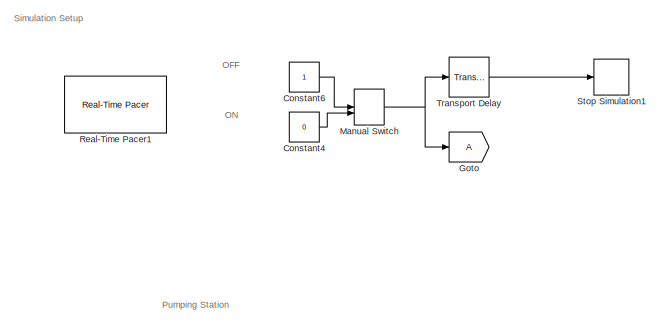
[diagram: root canvas - part 1/7, top left region]
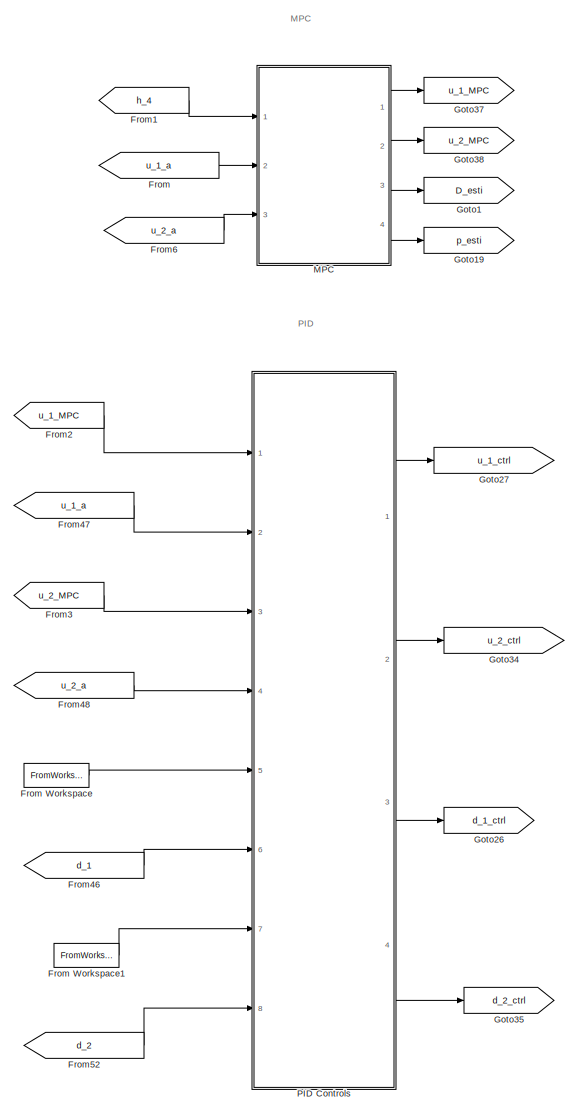
[diagram: root canvas - part 2/7, central region]
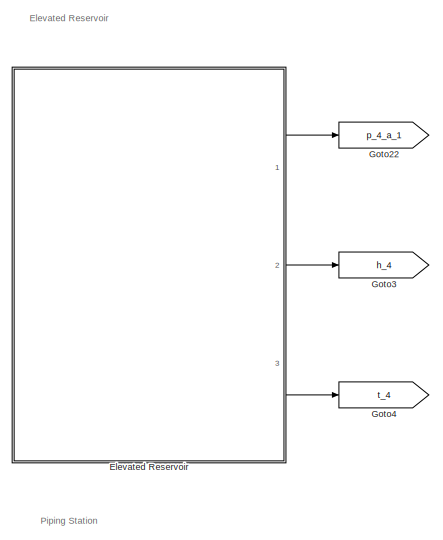
[diagram: root canvas - part 3/7, top center region]
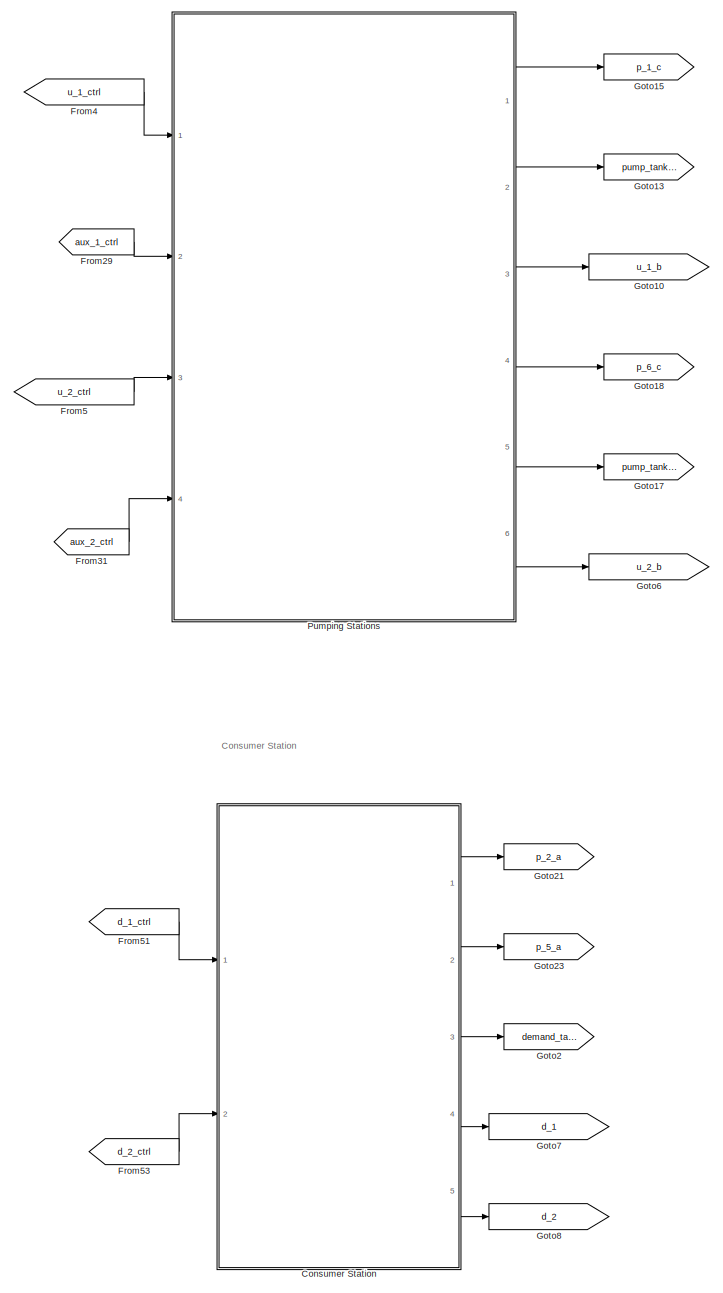
[diagram: root canvas - part 4/7, middle left region]
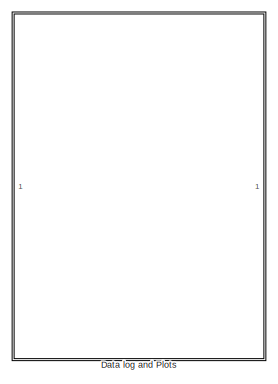
[diagram: root canvas - part 5/7, middle right region]
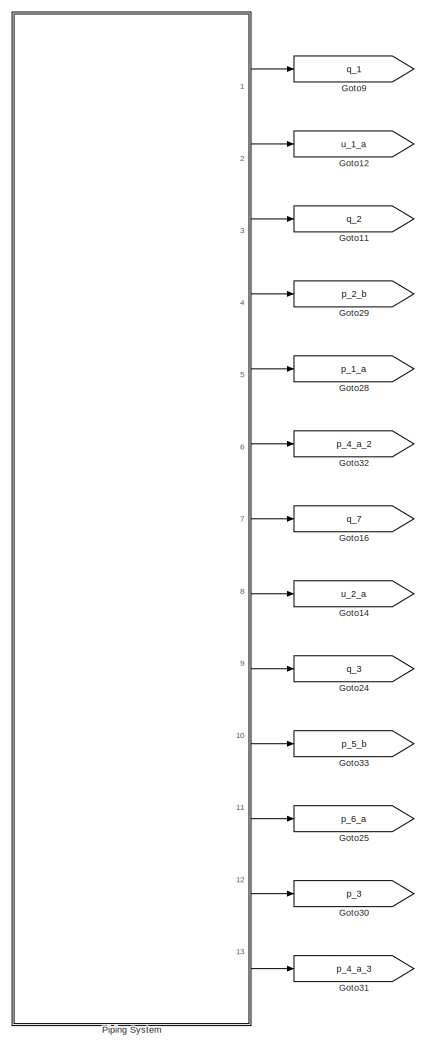
[diagram: root canvas - part 6/7, bottom center region]
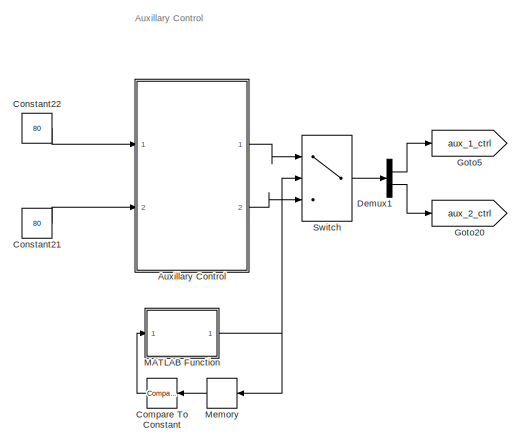
[diagram: root canvas - part 7/7, bottom center region]
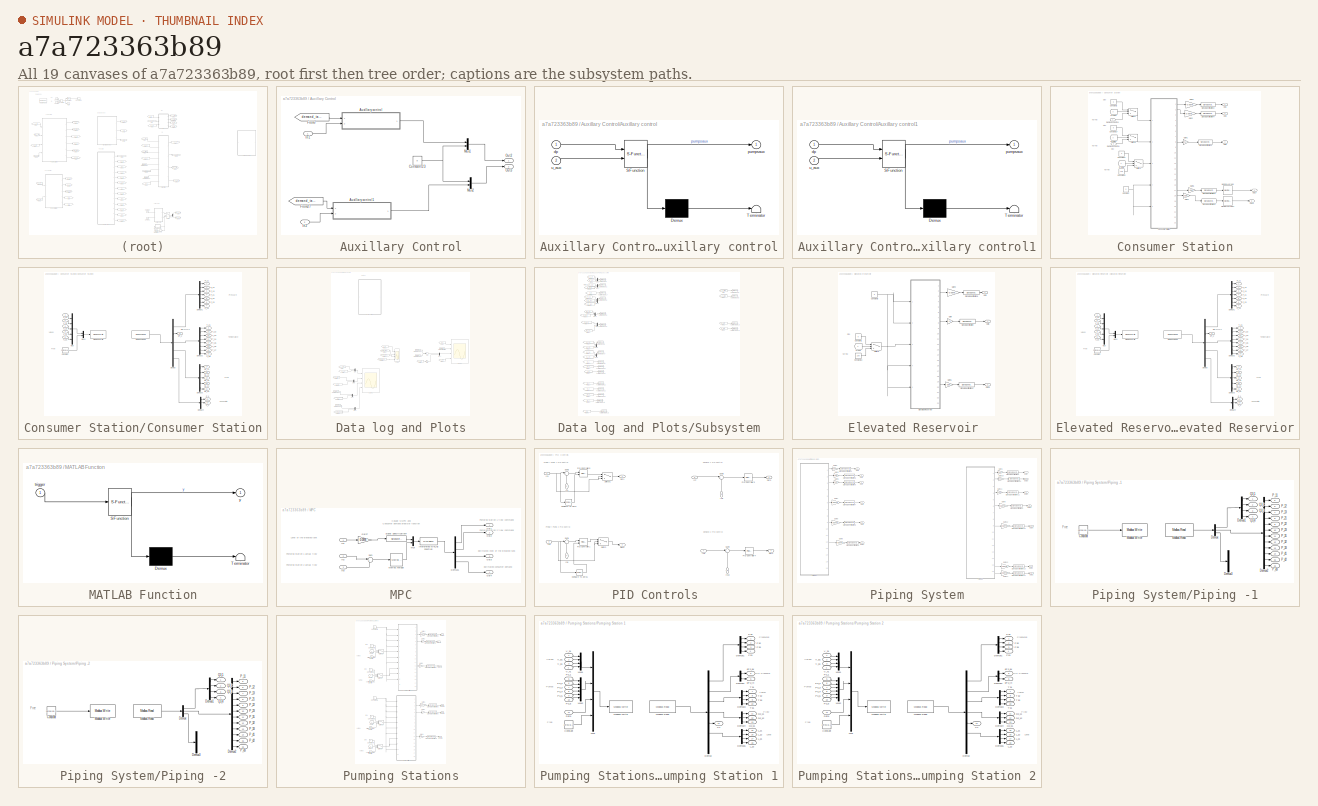
[diagram: thumbnail index - all 19 canvases of the model, root first then tree order]
MODEL slx_a7a723363b89
KIND model
CONFIG AbsTol = auto
CONFIG EnableMultiTasking = off
CONFIG FixedStep = auto
CONFIG InitFcn = setup_NMPC
CONFIG MaxStep = auto
CONFIG MinStep = auto
CONFIG RelTol = 1e-3
CONFIG SampleTimeConstraint = Unconstrained
CONFIG Solver = VariableStepAuto
CONFIG SolverName = VariableStepAuto
CONFIG StartTime = 0.0
CONFIG StopTime = inf
BLOCK [SubSystem] Auxillary Control
  Ports = [2, 2]
  RequestExecContextInheritance = off
BLOCK [SubSystem] Auxillary Control/Auxillary control
  ErrorFcn = Stateflow.Translate.translate
  PermitHierarchicalResolution = ExplicitOnly
  Ports = [2, 1]
  RequestExecContextInheritance = off
  SFBlockType = MATLAB Function
  TreatAsAtomicUnit = on
BLOCK [Demux] Auxillary Control/Auxillary control/ Demux 
  Outputs = 1
  Ports = [1, 1]
BLOCK [S-Function] Auxillary Control/Auxillary control/ SFunction 
  EnableBusSupport = on
  FunctionName = sf_sfun
  PortCounts = [2 2]
  Ports = [2, 2]
  SFcnIsStateOwnerBlock = off
  SFunctionDeploymentMode = off
  Tag = Stateflow S-Function 1
BLOCK [Terminator] Auxillary Control/Auxillary control/ Terminator 
BLOCK [Inport] Auxillary Control/Auxillary control/dp
  IconDisplay = Port number
BLOCK [Outport] Auxillary Control/Auxillary control/pumpsaux
  IconDisplay = Port number
  VectorParamsAs1DForOutWhenUnconnected = off
BLOCK [Inport] Auxillary Control/Auxillary control/u_aux
  IconDisplay = Port number
  Port = 2
BLOCK [SubSystem] Auxillary Control/Auxillary control1
  ErrorFcn = Stateflow.Translate.translate
  PermitHierarchicalResolution = ExplicitOnly
  Ports = [2, 1]
  RequestExecContextInheritance = off
  SFBlockType = MATLAB Function
  TreatAsAtomicUnit = on
BLOCK [Demux] Auxillary Control/Auxillary control1/ Demux 
  Outputs = 1
  Ports = [1, 1]
BLOCK [S-Function] Auxillary Control/Auxillary control1/ SFunction 
  EnableBusSupport = on
  FunctionName = sf_sfun
  PortCounts = [2 2]
  Ports = [2, 2]
  SFcnIsStateOwnerBlock = off
  SFunctionDeploymentMode = off
  Tag = Stateflow S-Function 2
BLOCK [Terminator] Auxillary Control/Auxillary control1/ Terminator 
BLOCK [Inport] Auxillary Control/Auxillary control1/dp
  IconDisplay = Port number
BLOCK [Outport] Auxillary Control/Auxillary control1/pumpsaux
  IconDisplay = Port number
  VectorParamsAs1DForOutWhenUnconnected = off
BLOCK [Inport] Auxillary Control/Auxillary control1/u_aux
  IconDisplay = Port number
  Port = 2
BLOCK [Constant] Auxillary Control/Constant23
  Value = 0
BLOCK [From] Auxillary Control/From27
  GotoTag = demand_tank
  TagVisibility = global
BLOCK [From] Auxillary Control/From7
  GotoTag = demand_tank
  TagVisibility = global
BLOCK [Inport] Auxillary Control/In1
  IconDisplay = Port number
BLOCK [Inport] Auxillary Control/In2
  IconDisplay = Port number
  Port = 2
BLOCK [Mux] Auxillary Control/Mux1
  DisplayOption = bar
  Inputs = 2
  Ports = [2, 1]
BLOCK [Mux] Auxillary Control/Mux2
  DisplayOption = bar
  Inputs = 2
  Ports = [2, 1]
BLOCK [Outport] Auxillary Control/Out2
  IconDisplay = Port number
  VectorParamsAs1DForOutWhenUnconnected = off
BLOCK [Outport] Auxillary Control/Out3
  IconDisplay = Port number
  Port = 2
  VectorParamsAs1DForOutWhenUnconnected = off
BLOCK [Reference] Compare To Constant  REF=simulink/Logic and Bit
Operations/Compare
To Constant
  Ports = [1, 1]
  SourceBlock = simulink/Logic and Bit\nOperations/Compare\nTo Constant
  SourceProductBaseCode = SL
  SourceProductName = Simulink
  SourceType = Compare To Constant
BLOCK [Constant] Constant21
  Value = 80
BLOCK [Constant] Constant22
  Value = 80
BLOCK [Constant] Constant4
  Value = 0
BLOCK [Constant] Constant6
BLOCK [SubSystem] Consumer Station
  Ports = [2, 5]
  RequestExecContextInheritance = off
BLOCK [Constant] Consumer Station/Constant
  Value = 0
BLOCK [Constant] Consumer Station/Constant11
  Value = 0
BLOCK [Constant] Consumer Station/Constant12
  Value = 100
BLOCK [Constant] Consumer Station/Constant17
  Value = 0
BLOCK [Constant] Consumer Station/Constant2
  Value = 0
BLOCK [SubSystem] Consumer Station/Consumer Station
  Ports = [5, 23]
  RequestExecContextInheritance = off
BLOCK [Outport] Consumer Station/Consumer Station/C_1
  IconDisplay = Port number
  Port = 22
  VectorParamsAs1DForOutWhenUnconnected = off
BLOCK [Outport] Consumer Station/Consumer Station/C_2
  IconDisplay = Port number
  Port = 23
  VectorParamsAs1DForOutWhenUnconnected = off
BLOCK [Constant] Consumer Station/Consumer Station/Constant
  Value = zeros(14,1)
BLOCK [Demux] Consumer Station/Consumer Station/Demux
  DisplayOption = bar
  Outputs = [7 1 8 5 3]
  Ports = [1, 5]
BLOCK [Demux] Consumer Station/Consumer Station/Demux1
  DisplayOption = bar
  Outputs = 7
  Ports = [1, 7]
BLOCK [Demux] Consumer Station/Consumer Station/Demux2
  DisplayOption = bar
  Outputs = 8
  Ports = [1, 8]
BLOCK [Demux] Consumer Station/Consumer Station/Demux3
  DisplayOption = bar
  Outputs = 5
  Ports = [1, 5]
BLOCK [Demux] Consumer Station/Consumer Station/Demux4
  DisplayOption = bar
  Outputs = 3
  Ports = [1, 3]
BLOCK [Reference] Consumer Station/Consumer Station/Modbus Read  REF=modbusMatLib/Modbus Read
  Ports = [0, 1]
  SourceBlock = modbusMatLib/Modbus Read
  SourceType = Modbus Read
BLOCK [Reference] Consumer Station/Consumer Station/Modbus Write  REF=modbusMatLib/Modbus Write
  Ports = [1]
  SourceBlock = modbusMatLib/Modbus Write
  SourceType = Modbus Write
BLOCK [Mux] Consumer Station/Consumer Station/Mux
  DisplayOption = bar
  Inputs = 5
  Ports = [5, 1]
BLOCK [Mux] Consumer Station/Consumer Station/Mux1
  DisplayOption = bar
  Inputs = 2
  Ports = [2, 1]
BLOCK [Outport] Consumer Station/Consumer Station/P_11
  IconDisplay = Port number
  VectorParamsAs1DForOutWhenUnconnected = off
BLOCK [Outport] Consumer Station/Consumer Station/P_12
  IconDisplay = Port number
  Port = 2
  VectorParamsAs1DForOutWhenUnconnected = off
BLOCK [Outport] Consumer Station/Consumer Station/P_13
  IconDisplay = Port number
  Port = 3
  VectorParamsAs1DForOutWhenUnconnected = off
BLOCK [Outport] Consumer Station/Consumer Station/P_21
  IconDisplay = Port number
  Port = 4
  VectorParamsAs1DForOutWhenUnconnected = off
BLOCK [Outport] Consumer Station/Consumer Station/P_22
  IconDisplay = Port number
  Port = 5
  VectorParamsAs1DForOutWhenUnconnected = off
BLOCK [Outport] Consumer Station/Consumer Station/P_23
  IconDisplay = Port number
  Port = 6
  VectorParamsAs1DForOutWhenUnconnected = off
BLOCK [Outport] Consumer Station/Consumer Station/P_24
  IconDisplay = Port number
  Port = 7
  VectorParamsAs1DForOutWhenUnconnected = off
BLOCK [Outport] Consumer Station/Consumer Station/Q1_11
  IconDisplay = Port number
  Port = 17
  VectorParamsAs1DForOutWhenUnconnected = off
BLOCK [Outport] Consumer Station/Consumer Station/Q1_12
  IconDisplay = Port number
  Port = 18
  VectorParamsAs1DForOutWhenUnconnected = off
BLOCK [Outport] Consumer Station/Consumer Station/Q1_13
  IconDisplay = Port number
  Port = 19
  VectorParamsAs1DForOutWhenUnconnected = off
BLOCK [Outport] Consumer Station/Consumer Station/Q1_21
  IconDisplay = Port number
  Port = 20
  VectorParamsAs1DForOutWhenUnconnected = off
BLOCK [Outport] Consumer Station/Consumer Station/Q1_22
  IconDisplay = Port number
  Port = 21
  VectorParamsAs1DForOutWhenUnconnected = off
BLOCK [Outport] Consumer Station/Consumer Station/T_21
  IconDisplay = Port number
  Port = 9
  VectorParamsAs1DForOutWhenUnconnected = off
BLOCK [Outport] Consumer Station/Consumer Station/T_22
  IconDisplay = Port number
  Port = 10
  VectorParamsAs1DForOutWhenUnconnected = off
BLOCK [Outport] Consumer Station/Consumer Station/T_23
  IconDisplay = Port number
  Port = 11
  VectorParamsAs1DForOutWhenUnconnected = off
BLOCK [Outport] Consumer Station/Consumer Station/T_24
  IconDisplay = Port number
  Port = 12
  VectorParamsAs1DForOutWhenUnconnected = off
BLOCK [Outport] Consumer Station/Consumer Station/T_25
  IconDisplay = Port number
  Port = 13
  VectorParamsAs1DForOutWhenUnconnected = off
BLOCK [Outport] Consumer Station/Consumer Station/T_26
  IconDisplay = Port number
  Port = 14
  VectorParamsAs1DForOutWhenUnconnected = off
BLOCK [Outport] Consumer Station/Consumer Station/T_27
  IconDisplay = Port number
  Port = 15
  VectorParamsAs1DForOutWhenUnconnected = off
BLOCK [Outport] Consumer Station/Consumer Station/T_28
  IconDisplay = Port number
  Port = 16
  VectorParamsAs1DForOutWhenUnconnected = off
BLOCK [Inport] Consumer Station/Consumer Station/V_11
  IconDisplay = Port number
BLOCK [Inport] Consumer Station/Consumer Station/V_12
  IconDisplay = Port number
  Port = 2
BLOCK [Inport] Consumer Station/Consumer Station/V_13
  IconDisplay = Port number
  Port = 3
BLOCK [Inport] Consumer Station/Consumer Station/V_21
  IconDisplay = Port number
  Port = 4
BLOCK [Inport] Consumer Station/Consumer Station/V_22
  IconDisplay = Port number
  Port = 5
BLOCK [Outport] Consumer Station/Consumer Station/dP_2
  IconDisplay = Port number
  Port = 8
  VectorParamsAs1DForOutWhenUnconnected = off
BLOCK [Inport] Consumer Station/Demand 1 Control
  IconDisplay = Port number
BLOCK [Inport] Consumer Station/Demand 2 Control
  IconDisplay = Port number
  Port = 2
BLOCK [From] Consumer Station/From3
  TagVisibility = global
BLOCK [From] Consumer Station/From36
  TagVisibility = global
BLOCK [From] Consumer Station/From37
  TagVisibility = global
BLOCK [Gain] Consumer Station/Gain1
  Gain = 0.1
  OutDataTypeStr = Inherit: Inherit via internal rule
  ParamDataTypeStr = Inherit: Inherit via internal rule
  SaturateOnIntegerOverflow = off
BLOCK [Gain] Consumer Station/Gain2
  Gain = 0.0978
  OutDataTypeStr = Inherit: Inherit via internal rule
  ParamDataTypeStr = Inherit: Inherit via internal rule
  SaturateOnIntegerOverflow = off
BLOCK [Gain] Consumer Station/Gain3
  Gain = 0.0978
  OutDataTypeStr = Inherit: Inherit via internal rule
  ParamDataTypeStr = Inherit: Inherit via internal rule
  SaturateOnIntegerOverflow = off
BLOCK [Gain] Consumer Station/Gain4
  Gain = 0.06
  OutDataTypeStr = Inherit: Inherit via internal rule
  ParamDataTypeStr = Inherit: Inherit via internal rule
  SaturateOnIntegerOverflow = off
BLOCK [Gain] Consumer Station/Gain6
  Gain = 0.06
  OutDataTypeStr = Inherit: Inherit via internal rule
  ParamDataTypeStr = Inherit: Inherit via internal rule
  SaturateOnIntegerOverflow = off
BLOCK [Reference] Consumer Station/Moving Average  REF=dspstat3/Moving
Average
  Ports = [1, 1]
  SourceBlock = dspstat3/Moving\nAverage
  SourceProductBaseCode = DS
  SourceProductName = DSP System Toolbox
  SourceType = dsp.simulink.MovingAverage
BLOCK [Reference] Consumer Station/Moving Average1  REF=dspstat3/Moving
Average
  Ports = [1, 1]
  SourceBlock = dspstat3/Moving\nAverage
  SourceProductBaseCode = DS
  SourceProductName = DSP System Toolbox
  SourceType = dsp.simulink.MovingAverage
BLOCK [Outport] Consumer Station/Out1
  IconDisplay = Port number
  VectorParamsAs1DForOutWhenUnconnected = off
BLOCK [Outport] Consumer Station/Out17
  IconDisplay = Port number
  Port = 4
  VectorParamsAs1DForOutWhenUnconnected = off
BLOCK [Outport] Consumer Station/Out19
  IconDisplay = Port number
  Port = 5
  VectorParamsAs1DForOutWhenUnconnected = off
BLOCK [Outport] Consumer Station/Out3
  IconDisplay = Port number
  Port = 2
  VectorParamsAs1DForOutWhenUnconnected = off
BLOCK [Outport] Consumer Station/Out8
  IconDisplay = Port number
  Port = 3
  VectorParamsAs1DForOutWhenUnconnected = off
BLOCK [SignalSpecification] Consumer Station/Signal Specification1
  Unit = m
BLOCK [SignalSpecification] Consumer Station/Signal Specification2
  Unit = bar
BLOCK [SignalSpecification] Consumer Station/Signal Specification3
  Unit = m^3/hr
BLOCK [SignalSpecification] Consumer Station/Signal Specification4
  Unit = bar
BLOCK [SignalSpecification] Consumer Station/Signal Specification5
  Unit = m^3/hr
BLOCK [Switch] Consumer Station/Switch4
  Criteria = u2 ~= 0
  InputSameDT = off
  SaturateOnIntegerOverflow = off
BLOCK [Switch] Consumer Station/Switch7
  Criteria = u2 ~= 0
  InputSameDT = off
  SaturateOnIntegerOverflow = off
BLOCK [Switch] Consumer Station/Switch8
  Criteria = u2 ~= 0
  InputSameDT = off
  SaturateOnIntegerOverflow = off
BLOCK [SubSystem] Data log and Plots
  Ports = []
  RequestExecContextInheritance = off
BLOCK [FromWorkspace] Data log and Plots/From Workspace1
  SampleTime = 1
  VariableName = d2
  ZeroCross = on
BLOCK [FromWorkspace] Data log and Plots/From Workspace2
  SampleTime = 1
  VariableName = d2
  ZeroCross = on
BLOCK [FromWorkspace] Data log and Plots/From Workspace3
  SampleTime = 1
  VariableName = d5
  ZeroCross = on
BLOCK [FromWorkspace] Data log and Plots/From Workspace4
  SampleTime = 1
  VariableName = d5
  ZeroCross = on
BLOCK [From] Data log and Plots/From1
  GotoTag = D_esti
  TagVisibility = global
BLOCK [From] Data log and Plots/From10
  GotoTag = u_2_a
  TagVisibility = global
BLOCK [From] Data log and Plots/From11
  GotoTag = d_2
  TagVisibility = global
BLOCK [From] Data log and Plots/From12
  GotoTag = h_4
  TagVisibility = global
BLOCK [From] Data log and Plots/From2
  GotoTag = p_esti
  TagVisibility = global
BLOCK [From] Data log and Plots/From32
  GotoTag = h_4
  TagVisibility = global
BLOCK [From] Data log and Plots/From33
  GotoTag = pump_tank_2_mm
BLOCK [From] Data log and Plots/From34
  GotoTag = demand_tank
  TagVisibility = global
BLOCK [From] Data log and Plots/From35
  GotoTag = pump_tank_1_mm
BLOCK [From] Data log and Plots/From6
  GotoTag = u_1_MPC
  TagVisibility = global
BLOCK [From] Data log and Plots/From7
  GotoTag = u_1_a
  TagVisibility = global
BLOCK [From] Data log and Plots/From8
  GotoTag = u_2_MPC
  TagVisibility = global
BLOCK [From] Data log and Plots/From9
  GotoTag = d_1
  TagVisibility = global
BLOCK [Gain] Data log and Plots/Gain
  Gain = -1
  OutDataTypeStr = Inherit: Inherit via internal rule
  ParamDataTypeStr = Inherit: Inherit via internal rule
  SaturateOnIntegerOverflow = off
BLOCK [Mux] Data log and Plots/Mux
  DisplayOption = bar
  Inputs = 2
  Ports = [2, 1]
BLOCK [Mux] Data log and Plots/Mux1
  DisplayOption = bar
  Inputs = 2
  Ports = [2, 1]
BLOCK [Mux] Data log and Plots/Mux2
  DisplayOption = bar
  Inputs = 2
  Ports = [2, 1]
BLOCK [Mux] Data log and Plots/Mux3
  DisplayOption = bar
  Inputs = 2
  Ports = [2, 1]
BLOCK [Mux] Data log and Plots/Mux4
  DisplayOption = bar
  Inputs = 2
  Ports = [2, 1]
BLOCK [Scope] Data log and Plots/Scope
  Floating = off
  NumInputPorts = 4
  Ports = [4]
  ScopeSpecificationString = Simulink.scopes.TimeScopeBlockCfg('CurrentConfiguration', extmgr.ConfigurationSet(extmgr.Configuration('Core','General UI',true),extmgr.Configuration('Core','Source UI',true),extmgr.Configuration('Sources','WiredSimulink',true,'DataLoggingVariableName','ScopeData1'),extmgr.Configuration('Visuals','Time Domain',true,'SerializedDisplays',{struct('MinYLimReal','-0.02137','MaxYLimReal','0.19238','YLab...<+3489ch>
BLOCK [Scope] Data log and Plots/Scope1
  Floating = off
  NumInputPorts = 4
  Ports = [4]
  ScopeSpecificationString = Simulink.scopes.TimeScopeBlockCfg('CurrentConfiguration', extmgr.ConfigurationSet(extmgr.Configuration('Core','General UI',true),extmgr.Configuration('Core','Source UI',true),extmgr.Configuration('Sources','WiredSimulink',true,'DataLoggingVariableName','ScopeData1'),extmgr.Configuration('Visuals','Time Domain',true,'SerializedDisplays',{struct('MinYLimReal','-0.04545','MaxYLimReal','0.40905','YLab...<+3499ch>
BLOCK [Scope] Data log and Plots/Scope2
  Floating = off
  NumInputPorts = 4
  Ports = [4]
  ScopeSpecificationString = Simulink.scopes.TimeScopeBlockCfg('CurrentConfiguration', extmgr.ConfigurationSet(extmgr.Configuration('Core','General UI',true),extmgr.Configuration('Core','Source UI',true),extmgr.Configuration('Sources','WiredSimulink',true,'DataLoggingVariableName','ScopeData1'),extmgr.Configuration('Visuals','Time Domain',true,'SerializedDisplays',{struct('MinYLimReal','-0.03125','MaxYLimReal','0.28125','YLab...<+3521ch>
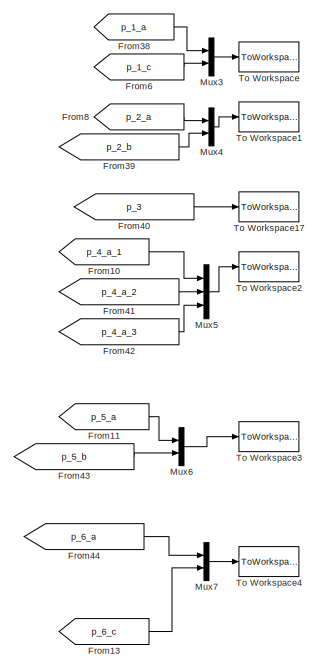
[diagram: Data log and Plots/Subsystem - part 1/4, top left region]
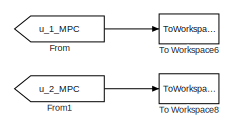
[diagram: Data log and Plots/Subsystem - part 2/4, top right region]
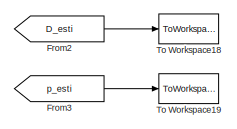
[diagram: Data log and Plots/Subsystem - part 3/4, middle right region]
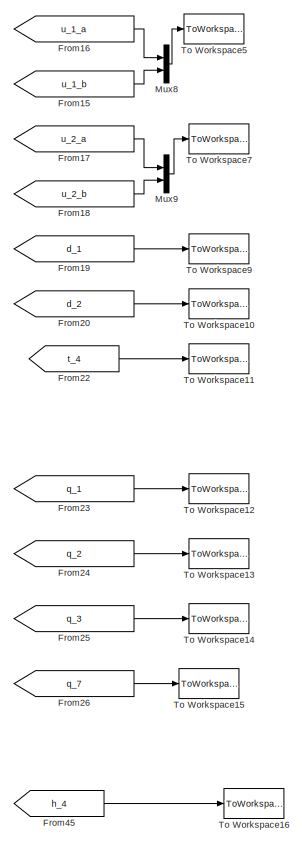
[diagram: Data log and Plots/Subsystem - part 4/4, bottom left region]
BLOCK [SubSystem] Data log and Plots/Subsystem
  Ports = []
  RequestExecContextInheritance = off
BLOCK [From] Data log and Plots/Subsystem/From
  GotoTag = u_1_MPC
  TagVisibility = global
BLOCK [From] Data log and Plots/Subsystem/From1
  GotoTag = u_2_MPC
  TagVisibility = global
BLOCK [From] Data log and Plots/Subsystem/From10
  GotoTag = p_4_a_1
  TagVisibility = global
BLOCK [From] Data log and Plots/Subsystem/From11
  GotoTag = p_5_a
  TagVisibility = global
BLOCK [From] Data log and Plots/Subsystem/From13
  GotoTag = p_6_c
  TagVisibility = global
BLOCK [From] Data log and Plots/Subsystem/From15
  GotoTag = u_1_b
  TagVisibility = global
BLOCK [From] Data log and Plots/Subsystem/From16
  GotoTag = u_1_a
  TagVisibility = global
BLOCK [From] Data log and Plots/Subsystem/From17
  GotoTag = u_2_a
  TagVisibility = global
BLOCK [From] Data log and Plots/Subsystem/From18
  GotoTag = u_2_b
  TagVisibility = global
BLOCK [From] Data log and Plots/Subsystem/From19
  GotoTag = d_1
  TagVisibility = global
BLOCK [From] Data log and Plots/Subsystem/From2
  GotoTag = D_esti
  TagVisibility = global
BLOCK [From] Data log and Plots/Subsystem/From20
  GotoTag = d_2
  TagVisibility = global
BLOCK [From] Data log and Plots/Subsystem/From22
  GotoTag = t_4
  TagVisibility = global
BLOCK [From] Data log and Plots/Subsystem/From23
  GotoTag = q_1
  TagVisibility = global
BLOCK [From] Data log and Plots/Subsystem/From24
  GotoTag = q_2
  TagVisibility = global
BLOCK [From] Data log and Plots/Subsystem/From25
  GotoTag = q_3
  TagVisibility = global
BLOCK [From] Data log and Plots/Subsystem/From26
  GotoTag = q_7
  TagVisibility = global
BLOCK [From] Data log and Plots/Subsystem/From3
  GotoTag = p_esti
  TagVisibility = global
BLOCK [From] Data log and Plots/Subsystem/From38
  GotoTag = p_1_a
  TagVisibility = global
BLOCK [From] Data log and Plots/Subsystem/From39
  GotoTag = p_2_b
  TagVisibility = global
BLOCK [From] Data log and Plots/Subsystem/From40
  GotoTag = p_3
  TagVisibility = global
BLOCK [From] Data log and Plots/Subsystem/From41
  GotoTag = p_4_a_2
  TagVisibility = global
BLOCK [From] Data log and Plots/Subsystem/From42
  GotoTag = p_4_a_3
  TagVisibility = global
BLOCK [From] Data log and Plots/Subsystem/From43
  GotoTag = p_5_b
  TagVisibility = global
BLOCK [From] Data log and Plots/Subsystem/From44
  GotoTag = p_6_a
  TagVisibility = global
BLOCK [From] Data log and Plots/Subsystem/From45
  GotoTag = h_4
  TagVisibility = global
BLOCK [From] Data log and Plots/Subsystem/From6
  GotoTag = p_1_c
  TagVisibility = global
BLOCK [From] Data log and Plots/Subsystem/From8
  GotoTag = p_2_a
  TagVisibility = global
BLOCK [Mux] Data log and Plots/Subsystem/Mux3
  DisplayOption = bar
  Inputs = 2
  Ports = [2, 1]
BLOCK [Mux] Data log and Plots/Subsystem/Mux4
  DisplayOption = bar
  Inputs = 2
  Ports = [2, 1]
BLOCK [Mux] Data log and Plots/Subsystem/Mux5
  DisplayOption = bar
  Inputs = 3
  Ports = [3, 1]
BLOCK [Mux] Data log and Plots/Subsystem/Mux6
  DisplayOption = bar
  Inputs = 2
  Ports = [2, 1]
BLOCK [Mux] Data log and Plots/Subsystem/Mux7
  DisplayOption = bar
  Inputs = 2
  Ports = [2, 1]
BLOCK [Mux] Data log and Plots/Subsystem/Mux8
  DisplayOption = bar
  Inputs = 2
  Ports = [2, 1]
BLOCK [Mux] Data log and Plots/Subsystem/Mux9
  DisplayOption = bar
  Inputs = 2
  Ports = [2, 1]
BLOCK [ToWorkspace] Data log and Plots/Subsystem/To Workspace
  FixptAsFi = on
  MaxDataPoints = inf
  Ports = [1]
  SampleTime = 1
  Save2DSignal = 2-D array (concatenate along first dimension)
  VariableName = p_1
BLOCK [ToWorkspace] Data log and Plots/Subsystem/To Workspace1
  FixptAsFi = on
  MaxDataPoints = inf
  Ports = [1]
  SampleTime = 1
  Save2DSignal = 2-D array (concatenate along first dimension)
  VariableName = p_2
BLOCK [ToWorkspace] Data log and Plots/Subsystem/To Workspace10
  FixptAsFi = on
  MaxDataPoints = inf
  Ports = [1]
  SampleTime = 1
  Save2DSignal = 2-D array (concatenate along first dimension)
  VariableName = d_2
BLOCK [ToWorkspace] Data log and Plots/Subsystem/To Workspace11
  FixptAsFi = on
  MaxDataPoints = inf
  Ports = [1]
  SampleTime = 1
  Save2DSignal = 2-D array (concatenate along first dimension)
  VariableName = t_4
BLOCK [ToWorkspace] Data log and Plots/Subsystem/To Workspace12
  FixptAsFi = on
  MaxDataPoints = inf
  Ports = [1]
  SampleTime = 1
  Save2DSignal = 2-D array (concatenate along first dimension)
  VariableName = q_1
BLOCK [ToWorkspace] Data log and Plots/Subsystem/To Workspace13
  FixptAsFi = on
  MaxDataPoints = inf
  Ports = [1]
  SampleTime = 1
  Save2DSignal = 2-D array (concatenate along first dimension)
  VariableName = q_2
BLOCK [ToWorkspace] Data log and Plots/Subsystem/To Workspace14
  FixptAsFi = on
  MaxDataPoints = inf
  Ports = [1]
  SampleTime = 1
  Save2DSignal = 2-D array (concatenate along first dimension)
  VariableName = q_3
BLOCK [ToWorkspace] Data log and Plots/Subsystem/To Workspace15
  FixptAsFi = on
  MaxDataPoints = inf
  Ports = [1]
  SampleTime = 1
  Save2DSignal = 2-D array (concatenate along first dimension)
  VariableName = q_7
BLOCK [ToWorkspace] Data log and Plots/Subsystem/To Workspace16
  FixptAsFi = on
  MaxDataPoints = inf
  Ports = [1]
  SampleTime = 1
  Save2DSignal = 2-D array (concatenate along first dimension)
  VariableName = h_4
BLOCK [ToWorkspace] Data log and Plots/Subsystem/To Workspace17
  FixptAsFi = on
  MaxDataPoints = inf
  Ports = [1]
  SampleTime = 1
  Save2DSignal = 2-D array (concatenate along first dimension)
  VariableName = p_3
BLOCK [ToWorkspace] Data log and Plots/Subsystem/To Workspace18
  FixptAsFi = on
  MaxDataPoints = inf
  Ports = [1]
  SampleTime = 1
  Save2DSignal = 2-D array (concatenate along first dimension)
  VariableName = D_esti
BLOCK [ToWorkspace] Data log and Plots/Subsystem/To Workspace19
  FixptAsFi = on
  MaxDataPoints = inf
  Ports = [1]
  SampleTime = 1
  Save2DSignal = 2-D array (concatenate along first dimension)
  VariableName = p_esti
BLOCK [ToWorkspace] Data log and Plots/Subsystem/To Workspace2
  FixptAsFi = on
  MaxDataPoints = inf
  Ports = [1]
  SampleTime = 1
  Save2DSignal = 2-D array (concatenate along first dimension)
  VariableName = p_4
BLOCK [ToWorkspace] Data log and Plots/Subsystem/To Workspace3
  FixptAsFi = on
  MaxDataPoints = inf
  Ports = [1]
  SampleTime = 1
  Save2DSignal = 2-D array (concatenate along first dimension)
  VariableName = p_5
BLOCK [ToWorkspace] Data log and Plots/Subsystem/To Workspace4
  FixptAsFi = on
  MaxDataPoints = inf
  Ports = [1]
  SampleTime = 1
  Save2DSignal = 2-D array (concatenate along first dimension)
  VariableName = p_6
BLOCK [ToWorkspace] Data log and Plots/Subsystem/To Workspace5
  FixptAsFi = on
  MaxDataPoints = inf
  Ports = [1]
  SampleTime = 1
  Save2DSignal = 2-D array (concatenate along first dimension)
  VariableName = u_1
BLOCK [ToWorkspace] Data log and Plots/Subsystem/To Workspace6
  FixptAsFi = on
  MaxDataPoints = inf
  Ports = [1]
  SampleTime = 1
  Save2DSignal = 2-D array (concatenate along first dimension)
  VariableName = u_1_MPC
BLOCK [ToWorkspace] Data log and Plots/Subsystem/To Workspace7
  FixptAsFi = on
  MaxDataPoints = inf
  Ports = [1]
  SampleTime = 1
  Save2DSignal = 2-D array (concatenate along first dimension)
  VariableName = u_2
BLOCK [ToWorkspace] Data log and Plots/Subsystem/To Workspace8
  FixptAsFi = on
  MaxDataPoints = inf
  Ports = [1]
  SampleTime = 1
  Save2DSignal = 2-D array (concatenate along first dimension)
  VariableName = u_2_MPC
BLOCK [ToWorkspace] Data log and Plots/Subsystem/To Workspace9
  FixptAsFi = on
  MaxDataPoints = inf
  Ports = [1]
  SampleTime = 1
  Save2DSignal = 2-D array (concatenate along first dimension)
  VariableName = d_1
BLOCK [Sum] Data log and Plots/Sum
  InputSameDT = off
  Inputs = +|+
  OutDataTypeStr = Inherit: Inherit via internal rule
  Ports = [2, 1]
  SaturateOnIntegerOverflow = off
BLOCK [FromWorkspace] Data log and Plots/Unit cost of electricity
  SampleTime = 1
  VariableName = C_con_p
  ZeroCross = on
BLOCK [Demux] Demux1
  DisplayOption = bar
  Outputs = 2
  Ports = [1, 2]
BLOCK [SubSystem] Elevated Reservoir 
  Ports = [0, 3]
  RequestExecContextInheritance = off
BLOCK [Constant] Elevated Reservoir /Constant1
  Value = 0
BLOCK [Constant] Elevated Reservoir /Constant13
  Value = 100
BLOCK [Constant] Elevated Reservoir /Constant3
  Value = 0
BLOCK [SubSystem] Elevated Reservoir /Elevated Reservior
  Ports = [5, 23]
  RequestExecContextInheritance = off
BLOCK [Outport] Elevated Reservoir /Elevated Reservior/C_1
  IconDisplay = Port number
  Port = 22
  VectorParamsAs1DForOutWhenUnconnected = off
BLOCK [Outport] Elevated Reservoir /Elevated Reservior/C_2
  IconDisplay = Port number
  Port = 23
  VectorParamsAs1DForOutWhenUnconnected = off
BLOCK [Constant] Elevated Reservoir /Elevated Reservior/Constant
  Value = zeros(14,1)
BLOCK [Demux] Elevated Reservoir /Elevated Reservior/Demux
  DisplayOption = bar
  Outputs = [7 1 8 5 3]
  Ports = [1, 5]
BLOCK [Demux] Elevated Reservoir /Elevated Reservior/Demux1
  DisplayOption = bar
  Outputs = 7
  Ports = [1, 7]
BLOCK [Demux] Elevated Reservoir /Elevated Reservior/Demux2
  DisplayOption = bar
  Outputs = 8
  Ports = [1, 8]
BLOCK [Demux] Elevated Reservoir /Elevated Reservior/Demux3
  DisplayOption = bar
  Outputs = 5
  Ports = [1, 5]
BLOCK [Demux] Elevated Reservoir /Elevated Reservior/Demux4
  DisplayOption = bar
  Outputs = 3
  Ports = [1, 3]
BLOCK [Reference] Elevated Reservoir /Elevated Reservior/Modbus Read  REF=modbusMatLib/Modbus Read
  Ports = [0, 1]
  SourceBlock = modbusMatLib/Modbus Read
  SourceType = Modbus Read
BLOCK [Reference] Elevated Reservoir /Elevated Reservior/Modbus Write  REF=modbusMatLib/Modbus Write
  Ports = [1]
  SourceBlock = modbusMatLib/Modbus Write
  SourceType = Modbus Write
BLOCK [Mux] Elevated Reservoir /Elevated Reservior/Mux
  DisplayOption = bar
  Inputs = 5
  Ports = [5, 1]
BLOCK [Mux] Elevated Reservoir /Elevated Reservior/Mux1
  DisplayOption = bar
  Inputs = 2
  Ports = [2, 1]
BLOCK [Outport] Elevated Reservoir /Elevated Reservior/P_11
  IconDisplay = Port number
  VectorParamsAs1DForOutWhenUnconnected = off
BLOCK [Outport] Elevated Reservoir /Elevated Reservior/P_12
  IconDisplay = Port number
  Port = 2
  VectorParamsAs1DForOutWhenUnconnected = off
BLOCK [Outport] Elevated Reservoir /Elevated Reservior/P_13
  IconDisplay = Port number
  Port = 3
  VectorParamsAs1DForOutWhenUnconnected = off
BLOCK [Outport] Elevated Reservoir /Elevated Reservior/P_21
  IconDisplay = Port number
  Port = 4
  VectorParamsAs1DForOutWhenUnconnected = off
BLOCK [Outport] Elevated Reservoir /Elevated Reservior/P_22
  IconDisplay = Port number
  Port = 5
  VectorParamsAs1DForOutWhenUnconnected = off
BLOCK [Outport] Elevated Reservoir /Elevated Reservior/P_23
  IconDisplay = Port number
  Port = 6
  VectorParamsAs1DForOutWhenUnconnected = off
BLOCK [Outport] Elevated Reservoir /Elevated Reservior/P_24
  IconDisplay = Port number
  Port = 7
  VectorParamsAs1DForOutWhenUnconnected = off
BLOCK [Outport] Elevated Reservoir /Elevated Reservior/Q1_11
  IconDisplay = Port number
  Port = 17
  VectorParamsAs1DForOutWhenUnconnected = off
BLOCK [Outport] Elevated Reservoir /Elevated Reservior/Q1_12
  IconDisplay = Port number
  Port = 18
  VectorParamsAs1DForOutWhenUnconnected = off
BLOCK [Outport] Elevated Reservoir /Elevated Reservior/Q1_13
  IconDisplay = Port number
  Port = 19
  VectorParamsAs1DForOutWhenUnconnected = off
BLOCK [Outport] Elevated Reservoir /Elevated Reservior/Q1_21
  IconDisplay = Port number
  Port = 20
  VectorParamsAs1DForOutWhenUnconnected = off
BLOCK [Outport] Elevated Reservoir /Elevated Reservior/Q1_22
  IconDisplay = Port number
  Port = 21
  VectorParamsAs1DForOutWhenUnconnected = off
BLOCK [Outport] Elevated Reservoir /Elevated Reservior/T_21
  IconDisplay = Port number
  Port = 9
  VectorParamsAs1DForOutWhenUnconnected = off
BLOCK [Outport] Elevated Reservoir /Elevated Reservior/T_22
  IconDisplay = Port number
  Port = 10
  VectorParamsAs1DForOutWhenUnconnected = off
BLOCK [Outport] Elevated Reservoir /Elevated Reservior/T_23
  IconDisplay = Port number
  Port = 11
  VectorParamsAs1DForOutWhenUnconnected = off
BLOCK [Outport] Elevated Reservoir /Elevated Reservior/T_24
  IconDisplay = Port number
  Port = 12
  VectorParamsAs1DForOutWhenUnconnected = off
BLOCK [Outport] Elevated Reservoir /Elevated Reservior/T_25
  IconDisplay = Port number
  Port = 13
  VectorParamsAs1DForOutWhenUnconnected = off
BLOCK [Outport] Elevated Reservoir /Elevated Reservior/T_26
  IconDisplay = Port number
  Port = 14
  VectorParamsAs1DForOutWhenUnconnected = off
BLOCK [Outport] Elevated Reservoir /Elevated Reservior/T_27
  IconDisplay = Port number
  Port = 15
  VectorParamsAs1DForOutWhenUnconnected = off
BLOCK [Outport] Elevated Reservoir /Elevated Reservior/T_28
  IconDisplay = Port number
  Port = 16
  VectorParamsAs1DForOutWhenUnconnected = off
BLOCK [Inport] Elevated Reservoir /Elevated Reservior/V_11
  IconDisplay = Port number
BLOCK [Inport] Elevated Reservoir /Elevated Reservior/V_12
  IconDisplay = Port number
  Port = 2
BLOCK [Inport] Elevated Reservoir /Elevated Reservior/V_13
  IconDisplay = Port number
  Port = 3
BLOCK [Inport] Elevated Reservoir /Elevated Reservior/V_21
  IconDisplay = Port number
  Port = 4
BLOCK [Inport] Elevated Reservoir /Elevated Reservior/V_22
  IconDisplay = Port number
  Port = 5
BLOCK [Outport] Elevated Reservoir /Elevated Reservior/dP_2
  IconDisplay = Port number
  Port = 8
  VectorParamsAs1DForOutWhenUnconnected = off
BLOCK [From] Elevated Reservoir /From4
  TagVisibility = global
BLOCK [Gain] Elevated Reservoir /Gain
  Gain = 0.1
  OutDataTypeStr = Inherit: Inherit via internal rule
  ParamDataTypeStr = Inherit: Inherit via internal rule
  SaturateOnIntegerOverflow = off
BLOCK [Gain] Elevated Reservoir /Gain3
  Gain = 0.0978
  OutDataTypeStr = Inherit: Inherit via internal rule
  ParamDataTypeStr = Inherit: Inherit via internal rule
  SaturateOnIntegerOverflow = off
BLOCK [Gain] Elevated Reservoir /Gain6
  Gain = 0.06
  OutDataTypeStr = Inherit: Inherit via internal rule
  ParamDataTypeStr = Inherit: Inherit via internal rule
  SaturateOnIntegerOverflow = off
BLOCK [Outport] Elevated Reservoir /Out19
  IconDisplay = Port number
  Port = 3
  VectorParamsAs1DForOutWhenUnconnected = off
BLOCK [Outport] Elevated Reservoir /Out3
  IconDisplay = Port number
  VectorParamsAs1DForOutWhenUnconnected = off
BLOCK [Outport] Elevated Reservoir /Out8
  IconDisplay = Port number
  Port = 2
  VectorParamsAs1DForOutWhenUnconnected = off
BLOCK [SignalSpecification] Elevated Reservoir /Signal Specification
  Unit = m
BLOCK [SignalSpecification] Elevated Reservoir /Signal Specification3
  Unit = m^3/hr
BLOCK [SignalSpecification] Elevated Reservoir /Signal Specification5
  Unit = bar
BLOCK [Switch] Elevated Reservoir /Switch5
  Criteria = u2 ~= 0
  InputSameDT = off
  SaturateOnIntegerOverflow = off
BLOCK [From] From
  GotoTag = u_1_a
  TagVisibility = global
BLOCK [FromWorkspace] From Workspace
  SampleTime = 1
  VariableName = d2
  ZeroCross = on
BLOCK [FromWorkspace] From Workspace1
  SampleTime = 1
  VariableName = d5
  ZeroCross = on
BLOCK [From] From1
  GotoTag = h_4
  TagVisibility = global
BLOCK [From] From2
  GotoTag = u_1_MPC
  TagVisibility = global
BLOCK [From] From29
  GotoTag = aux_1_ctrl
  TagVisibility = global
BLOCK [From] From3
  GotoTag = u_2_MPC
  TagVisibility = global
BLOCK [From] From31
  GotoTag = aux_2_ctrl
BLOCK [From] From4
  GotoTag = u_1_ctrl
  TagVisibility = global
BLOCK [From] From46
  GotoTag = d_1
  TagVisibility = global
BLOCK [From] From47
  GotoTag = u_1_a
  TagVisibility = global
BLOCK [From] From48
  GotoTag = u_2_a
  TagVisibility = global
BLOCK [From] From5
  GotoTag = u_2_ctrl
  TagVisibility = global
BLOCK [From] From51
  GotoTag = d_1_ctrl
  TagVisibility = global
BLOCK [From] From52
  GotoTag = d_2
  TagVisibility = global
BLOCK [From] From53
  GotoTag = d_2_ctrl
  TagVisibility = global
BLOCK [From] From6
  GotoTag = u_2_a
  TagVisibility = global
BLOCK [Goto] Goto
  TagVisibility = global
BLOCK [Goto] Goto1
  GotoTag = D_esti
  TagVisibility = global
BLOCK [Goto] Goto10
  GotoTag = u_1_b
  TagVisibility = global
BLOCK [Goto] Goto11
  GotoTag = q_2
  TagVisibility = global
BLOCK [Goto] Goto12
  GotoTag = u_1_a
  TagVisibility = global
BLOCK [Goto] Goto13
  GotoTag = pump_tank_1
  TagVisibility = global
BLOCK [Goto] Goto14
  GotoTag = u_2_a
  TagVisibility = global
BLOCK [Goto] Goto15
  GotoTag = p_1_c
  TagVisibility = global
BLOCK [Goto] Goto16
  GotoTag = q_7
  TagVisibility = global
BLOCK [Goto] Goto17
  GotoTag = pump_tank_2
  TagVisibility = global
BLOCK [Goto] Goto18
  GotoTag = p_6_c
  TagVisibility = global
BLOCK [Goto] Goto19
  GotoTag = p_esti
  TagVisibility = global
BLOCK [Goto] Goto2
  GotoTag = demand_tank
  TagVisibility = global
BLOCK [Goto] Goto20
  GotoTag = aux_2_ctrl
BLOCK [Goto] Goto21
  GotoTag = p_2_a
  TagVisibility = global
BLOCK [Goto] Goto22
  GotoTag = p_4_a_1
  TagVisibility = global
BLOCK [Goto] Goto23
  GotoTag = p_5_a
  TagVisibility = global
BLOCK [Goto] Goto24
  GotoTag = q_3
  TagVisibility = global
BLOCK [Goto] Goto25
  GotoTag = p_6_a
  TagVisibility = global
BLOCK [Goto] Goto26
  GotoTag = d_1_ctrl
  TagVisibility = global
BLOCK [Goto] Goto27
  GotoTag = u_1_ctrl
  TagVisibility = global
BLOCK [Goto] Goto28
  GotoTag = p_1_a
  TagVisibility = global
BLOCK [Goto] Goto29
  GotoTag = p_2_b
  TagVisibility = global
BLOCK [Goto] Goto3
  GotoTag = h_4
  TagVisibility = global
BLOCK [Goto] Goto30
  GotoTag = p_3
  TagVisibility = global
BLOCK [Goto] Goto31
  GotoTag = p_4_a_3
  TagVisibility = global
BLOCK [Goto] Goto32
  GotoTag = p_4_a_2
  TagVisibility = global
BLOCK [Goto] Goto33
  GotoTag = p_5_b
  TagVisibility = global
BLOCK [Goto] Goto34
  GotoTag = u_2_ctrl
  TagVisibility = global
BLOCK [Goto] Goto35
  GotoTag = d_2_ctrl
  TagVisibility = global
BLOCK [Goto] Goto37
  GotoTag = u_1_MPC
  TagVisibility = global
BLOCK [Goto] Goto38
  GotoTag = u_2_MPC
  TagVisibility = global
BLOCK [Goto] Goto4
  GotoTag = t_4
  TagVisibility = global
BLOCK [Goto] Goto5
  GotoTag = aux_1_ctrl
  TagVisibility = global
BLOCK [Goto] Goto6
  GotoTag = u_2_b
  TagVisibility = global
BLOCK [Goto] Goto7
  GotoTag = d_1
  TagVisibility = global
BLOCK [Goto] Goto8
  GotoTag = d_2
  TagVisibility = global
BLOCK [Goto] Goto9
  GotoTag = q_1
  TagVisibility = global
BLOCK [SubSystem] MATLAB Function
  ErrorFcn = Stateflow.Translate.translate
  PermitHierarchicalResolution = ExplicitOnly
  Ports = [1, 1]
  RequestExecContextInheritance = off
  SFBlockType = MATLAB Function
  SystemSampleTime = 1
  TreatAsAtomicUnit = on
BLOCK [Demux] MATLAB Function/ Demux 
  Outputs = 1
  Ports = [1, 1]
BLOCK [S-Function] MATLAB Function/ SFunction 
  EnableBusSupport = on
  FunctionName = sf_sfun
  PortCounts = [1 2]
  Ports = [1, 2]
  SFcnIsStateOwnerBlock = off
  SFunctionDeploymentMode = off
  Tag = Stateflow S-Function 3
BLOCK [Terminator] MATLAB Function/ Terminator 
BLOCK [Inport] MATLAB Function/trigger
  IconDisplay = Port number
BLOCK [Outport] MATLAB Function/y
  IconDisplay = Port number
BLOCK [SubSystem] MPC
  Ports = [3, 4]
  RequestExecContextInheritance = off
BLOCK [Demux] MPC/Demux1
  DisplayOption = bar
  Ports = [1, 4]
BLOCK [Gain] MPC/Gain7
  Gain = 0.0978
  OutDataTypeStr = Inherit: Inherit via internal rule
  ParamDataTypeStr = Inherit: Inherit via internal rule
  SaturateOnIntegerOverflow = off
BLOCK [Inport] MPC/In1
  IconDisplay = Port number
BLOCK [Inport] MPC/In2
  IconDisplay = Port number
  Port = 2
BLOCK [Inport] MPC/In3
  IconDisplay = Port number
  Port = 3
BLOCK [MATLABFcn] MPC/Interpreted MATLAB Function
  MATLABFcn = MPC_func(u(1),u(2))
  Ports = [1, 1]
  SampleTime = 60
BLOCK [Reference] MPC/Moving Average  REF=dspstat3/Moving
Average
  Ports = [1, 1]
  SourceBlock = dspstat3/Moving\nAverage
  SourceProductBaseCode = DS
  SourceProductName = DSP System Toolbox
  SourceType = dsp.simulink.MovingAverage
BLOCK [Mux] MPC/Mux
  DisplayOption = bar
  Inputs = 2
  Ports = [2, 1]
BLOCK [Outport] MPC/Out1
  IconDisplay = Port number
  VectorParamsAs1DForOutWhenUnconnected = off
BLOCK [Outport] MPC/Out2
  IconDisplay = Port number
  Port = 2
  VectorParamsAs1DForOutWhenUnconnected = off
BLOCK [Outport] MPC/Out3
  IconDisplay = Port number
  Port = 3
  VectorParamsAs1DForOutWhenUnconnected = off
BLOCK [Outport] MPC/Out4
  IconDisplay = Port number
  Port = 4
  VectorParamsAs1DForOutWhenUnconnected = off
BLOCK [SignalSpecification] MPC/Signal Specification7
  Unit = bar
BLOCK [Sum] MPC/Sum
  IconShape = round
  InputSameDT = off
  Inputs = |++
  OutDataTypeStr = Inherit: Inherit via internal rule
  Ports = [2, 1]
  SaturateOnIntegerOverflow = off
BLOCK [ManualSwitch] Manual Switch
BLOCK [Memory] Memory
BLOCK [SubSystem] PID Controls 
  Ports = [8, 4]
  RequestExecContextInheritance = off
BLOCK [Reference] PID Controls /Compare To Zero  REF=simulink/Logic and Bit
Operations/Compare
To Zero
  Ports = [1, 1]
  SourceBlock = simulink/Logic and Bit\nOperations/Compare\nTo Zero
  SourceProductBaseCode = SL
  SourceProductName = Simulink
  SourceType = Compare To Zero
BLOCK [Reference] PID Controls /Compare To Zero1  REF=simulink/Logic and Bit
Operations/Compare
To Zero
  Ports = [1, 1]
  SourceBlock = simulink/Logic and Bit\nOperations/Compare\nTo Zero
  SourceProductBaseCode = SL
  SourceProductName = Simulink
  SourceType = Compare To Zero
BLOCK [Inport] PID Controls /In1
  IconDisplay = Port number
BLOCK [Inport] PID Controls /In10
  IconDisplay = Port number
  Port = 8
BLOCK [Inport] PID Controls /In3
  IconDisplay = Port number
  Port = 2
BLOCK [Inport] PID Controls /In4
  IconDisplay = Port number
  Port = 3
BLOCK [Inport] PID Controls /In6
  IconDisplay = Port number
  Port = 4
BLOCK [Inport] PID Controls /In7
  IconDisplay = Port number
  Port = 5
BLOCK [Inport] PID Controls /In8
  IconDisplay = Port number
  Port = 6
BLOCK [Inport] PID Controls /In9
  IconDisplay = Port number
  Port = 7
BLOCK [Outport] PID Controls /Out1
  IconDisplay = Port number
  VectorParamsAs1DForOutWhenUnconnected = off
BLOCK [Outport] PID Controls /Out2
  IconDisplay = Port number
  Port = 2
  VectorParamsAs1DForOutWhenUnconnected = off
BLOCK [Outport] PID Controls /Out3
  IconDisplay = Port number
  Port = 3
  VectorParamsAs1DForOutWhenUnconnected = off
BLOCK [Outport] PID Controls /Out4
  IconDisplay = Port number
  Port = 4
  VectorParamsAs1DForOutWhenUnconnected = off
BLOCK [Reference] PID Controls /PID Controller1  REF=simulink/Continuous/PID Controller
  Ports = [2, 1]
  SourceBlock = simulink/Continuous/PID Controller
  SourceProductBaseCode = SL
  SourceProductName = Simulink
  SourceType = PID 1dof
BLOCK [Reference] PID Controls /PID Controller3  REF=simulink/Continuous/PID Controller
  Ports = [1, 1]
  SourceBlock = simulink/Continuous/PID Controller
  SourceProductBaseCode = SL
  SourceProductName = Simulink
  SourceType = PID 1dof
BLOCK [Reference] PID Controls /PID Controller4  REF=simulink/Continuous/PID Controller
  Ports = [1, 1]
  SourceBlock = simulink/Continuous/PID Controller
  SourceProductBaseCode = SL
  SourceProductName = Simulink
  SourceType = PID 1dof
BLOCK [Reference] PID Controls /PID Controller5  REF=simulink/Continuous/PID Controller
  Ports = [2, 1]
  SourceBlock = simulink/Continuous/PID Controller
  SourceProductBaseCode = SL
  SourceProductName = Simulink
  SourceType = PID 1dof
BLOCK [Sum] PID Controls /Sum1
  IconShape = round
  InputSameDT = off
  Inputs = |+-
  OutDataTypeStr = Inherit: Inherit via internal rule
  Ports = [2, 1]
  SaturateOnIntegerOverflow = off
BLOCK [Sum] PID Controls /Sum2
  IconShape = round
  InputSameDT = off
  Inputs = |+-
  OutDataTypeStr = Inherit: Inherit via internal rule
  Ports = [2, 1]
  SaturateOnIntegerOverflow = off
BLOCK [Sum] PID Controls /Sum3
  IconShape = round
  InputSameDT = off
  Inputs = |+-
  OutDataTypeStr = Inherit: Inherit via internal rule
  Ports = [2, 1]
  SaturateOnIntegerOverflow = off
BLOCK [Sum] PID Controls /Sum4
  IconShape = round
  InputSameDT = off
  Inputs = |+-
  OutDataTypeStr = Inherit: Inherit via internal rule
  Ports = [2, 1]
  SaturateOnIntegerOverflow = off
BLOCK [Switch] PID Controls /Switch
  Criteria = u2 ~= 0
  InputSameDT = off
  SaturateOnIntegerOverflow = off
BLOCK [Switch] PID Controls /Switch1
  Criteria = u2 > Threshold
  InputSameDT = off
  SaturateOnIntegerOverflow = off
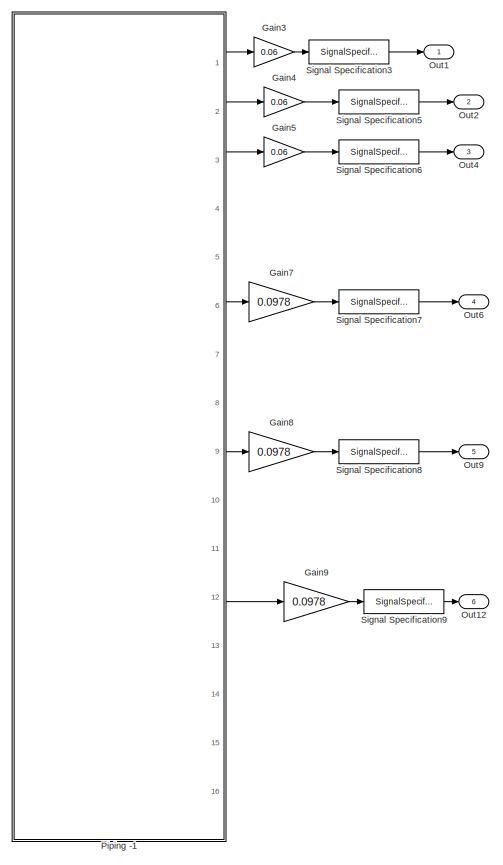
[diagram: Piping System - part 1/2, left side, full height]
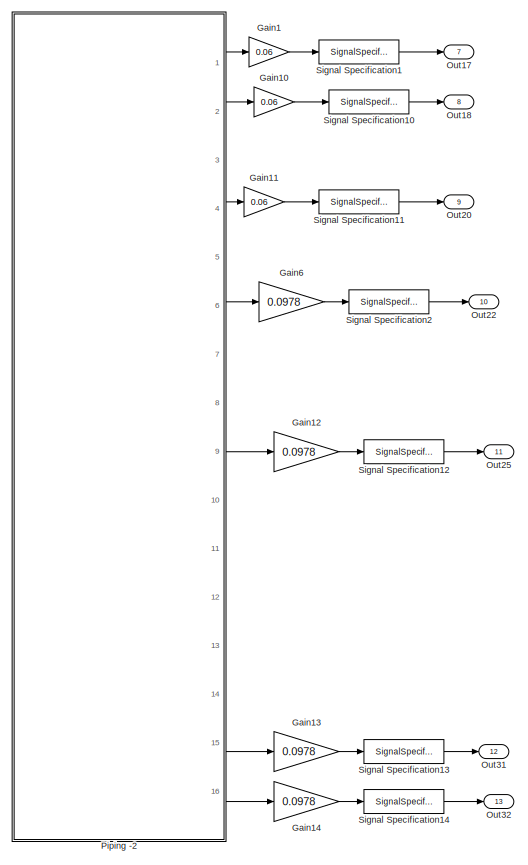
[diagram: Piping System - part 2/2, right side, full height]
BLOCK [SubSystem] Piping System
  Ports = [0, 13]
  RequestExecContextInheritance = off
BLOCK [Gain] Piping System/Gain1
  Gain = 0.06
  OutDataTypeStr = Inherit: Inherit via internal rule
  ParamDataTypeStr = Inherit: Inherit via internal rule
  SaturateOnIntegerOverflow = off
BLOCK [Gain] Piping System/Gain10
  Gain = 0.06
  OutDataTypeStr = Inherit: Inherit via internal rule
  ParamDataTypeStr = Inherit: Inherit via internal rule
  SaturateOnIntegerOverflow = off
BLOCK [Gain] Piping System/Gain11
  Gain = 0.06
  OutDataTypeStr = Inherit: Inherit via internal rule
  ParamDataTypeStr = Inherit: Inherit via internal rule
  SaturateOnIntegerOverflow = off
BLOCK [Gain] Piping System/Gain12
  Gain = 0.0978
  OutDataTypeStr = Inherit: Inherit via internal rule
  ParamDataTypeStr = Inherit: Inherit via internal rule
  SaturateOnIntegerOverflow = off
BLOCK [Gain] Piping System/Gain13
  Gain = 0.0978
  OutDataTypeStr = Inherit: Inherit via internal rule
  ParamDataTypeStr = Inherit: Inherit via internal rule
  SaturateOnIntegerOverflow = off
BLOCK [Gain] Piping System/Gain14
  Gain = 0.0978
  OutDataTypeStr = Inherit: Inherit via internal rule
  ParamDataTypeStr = Inherit: Inherit via internal rule
  SaturateOnIntegerOverflow = off
BLOCK [Gain] Piping System/Gain3
  Gain = 0.06
  OutDataTypeStr = Inherit: Inherit via internal rule
  ParamDataTypeStr = Inherit: Inherit via internal rule
  SaturateOnIntegerOverflow = off
BLOCK [Gain] Piping System/Gain4
  Gain = 0.06
  OutDataTypeStr = Inherit: Inherit via internal rule
  ParamDataTypeStr = Inherit: Inherit via internal rule
  SaturateOnIntegerOverflow = off
BLOCK [Gain] Piping System/Gain5
  Gain = 0.06
  OutDataTypeStr = Inherit: Inherit via internal rule
  ParamDataTypeStr = Inherit: Inherit via internal rule
  SaturateOnIntegerOverflow = off
BLOCK [Gain] Piping System/Gain6
  Gain = 0.0978
  OutDataTypeStr = Inherit: Inherit via internal rule
  ParamDataTypeStr = Inherit: Inherit via internal rule
  SaturateOnIntegerOverflow = off
BLOCK [Gain] Piping System/Gain7
  Gain = 0.0978
  OutDataTypeStr = Inherit: Inherit via internal rule
  ParamDataTypeStr = Inherit: Inherit via internal rule
  SaturateOnIntegerOverflow = off
BLOCK [Gain] Piping System/Gain8
  Gain = 0.0978
  OutDataTypeStr = Inherit: Inherit via internal rule
  ParamDataTypeStr = Inherit: Inherit via internal rule
  SaturateOnIntegerOverflow = off
BLOCK [Gain] Piping System/Gain9
  Gain = 0.0978
  OutDataTypeStr = Inherit: Inherit via internal rule
  ParamDataTypeStr = Inherit: Inherit via internal rule
  SaturateOnIntegerOverflow = off
BLOCK [Outport] Piping System/Out1
  IconDisplay = Port number
  VectorParamsAs1DForOutWhenUnconnected = off
BLOCK [Outport] Piping System/Out12
  IconDisplay = Port number
  Port = 6
  VectorParamsAs1DForOutWhenUnconnected = off
BLOCK [Outport] Piping System/Out17
  IconDisplay = Port number
  Port = 7
  VectorParamsAs1DForOutWhenUnconnected = off
BLOCK [Outport] Piping System/Out18
  IconDisplay = Port number
  Port = 8
  VectorParamsAs1DForOutWhenUnconnected = off
BLOCK [Outport] Piping System/Out2
  IconDisplay = Port number
  Port = 2
  VectorParamsAs1DForOutWhenUnconnected = off
BLOCK [Outport] Piping System/Out20
  IconDisplay = Port number
  Port = 9
  VectorParamsAs1DForOutWhenUnconnected = off
BLOCK [Outport] Piping System/Out22
  IconDisplay = Port number
  Port = 10
  VectorParamsAs1DForOutWhenUnconnected = off
BLOCK [Outport] Piping System/Out25
  IconDisplay = Port number
  Port = 11
  VectorParamsAs1DForOutWhenUnconnected = off
BLOCK [Outport] Piping System/Out31
  IconDisplay = Port number
  Port = 12
  VectorParamsAs1DForOutWhenUnconnected = off
BLOCK [Outport] Piping System/Out32
  IconDisplay = Port number
  Port = 13
  VectorParamsAs1DForOutWhenUnconnected = off
BLOCK [Outport] Piping System/Out4
  IconDisplay = Port number
  Port = 3
  VectorParamsAs1DForOutWhenUnconnected = off
BLOCK [Outport] Piping System/Out6
  IconDisplay = Port number
  Port = 4
  VectorParamsAs1DForOutWhenUnconnected = off
BLOCK [Outport] Piping System/Out9
  IconDisplay = Port number
  Port = 5
  VectorParamsAs1DForOutWhenUnconnected = off
BLOCK [SubSystem] Piping System/Piping -1
  Ports = [0, 16]
  RequestExecContextInheritance = off
BLOCK [Constant] Piping System/Piping -1/Constant
  Value = zeros(19,1)
BLOCK [Demux] Piping System/Piping -1/Demux
  DisplayOption = bar
  Outputs = [4 12 8]
  Ports = [1, 3]
BLOCK [Demux] Piping System/Piping -1/Demux1
  DisplayOption = bar
  Ports = [1, 4]
BLOCK [Demux] Piping System/Piping -1/Demux2
  DisplayOption = bar
  Outputs = 12
  Ports = [1, 12]
BLOCK [Demux] Piping System/Piping -1/Demux3
  DisplayOption = bar
  Ports = [1, 4]
BLOCK [Reference] Piping System/Piping -1/Modbus Read  REF=modbusMatLib/Modbus Read
  Ports = [0, 1]
  SourceBlock = modbusMatLib/Modbus Read
  SourceType = Modbus Read
BLOCK [Reference] Piping System/Piping -1/Modbus Write  REF=modbusMatLib/Modbus Write
  Ports = [1]
  SourceBlock = modbusMatLib/Modbus Write
  SourceType = Modbus Write
BLOCK [Outport] Piping System/Piping -1/P_11
  IconDisplay = Port number
  Port = 5
  VectorParamsAs1DForOutWhenUnconnected = off
BLOCK [Outport] Piping System/Piping -1/P_12
  IconDisplay = Port number
  Port = 6
  VectorParamsAs1DForOutWhenUnconnected = off
BLOCK [Outport] Piping System/Piping -1/P_13
  IconDisplay = Port number
  Port = 7
  VectorParamsAs1DForOutWhenUnconnected = off
BLOCK [Outport] Piping System/Piping -1/P_21
  IconDisplay = Port number
  Port = 8
  VectorParamsAs1DForOutWhenUnconnected = off
BLOCK [Outport] Piping System/Piping -1/P_22
  IconDisplay = Port number
  Port = 9
  VectorParamsAs1DForOutWhenUnconnected = off
BLOCK [Outport] Piping System/Piping -1/P_23
  IconDisplay = Port number
  Port = 10
  VectorParamsAs1DForOutWhenUnconnected = off
BLOCK [Outport] Piping System/Piping -1/P_31
  IconDisplay = Port number
  Port = 11
  VectorParamsAs1DForOutWhenUnconnected = off
BLOCK [Outport] Piping System/Piping -1/P_32
  IconDisplay = Port number
  Port = 12
  VectorParamsAs1DForOutWhenUnconnected = off
BLOCK [Outport] Piping System/Piping -1/P_33
  IconDisplay = Port number
  Port = 13
  VectorParamsAs1DForOutWhenUnconnected = off
BLOCK [Outport] Piping System/Piping -1/P_41
  IconDisplay = Port number
  Port = 14
  VectorParamsAs1DForOutWhenUnconnected = off
BLOCK [Outport] Piping System/Piping -1/P_42
  IconDisplay = Port number
  Port = 15
  VectorParamsAs1DForOutWhenUnconnected = off
BLOCK [Outport] Piping System/Piping -1/P_43
  IconDisplay = Port number
  Port = 16
  VectorParamsAs1DForOutWhenUnconnected = off
BLOCK [Outport] Piping System/Piping -1/Q3_1
  IconDisplay = Port number
  VectorParamsAs1DForOutWhenUnconnected = off
BLOCK [Outport] Piping System/Piping -1/Q3_2
  IconDisplay = Port number
  Port = 2
  VectorParamsAs1DForOutWhenUnconnected = off
BLOCK [Outport] Piping System/Piping -1/Q3_3
  IconDisplay = Port number
  Port = 3
  VectorParamsAs1DForOutWhenUnconnected = off
BLOCK [Outport] Piping System/Piping -1/Q3_4
  IconDisplay = Port number
  Port = 4
  VectorParamsAs1DForOutWhenUnconnected = off
BLOCK [SubSystem] Piping System/Piping -2
  Ports = [0, 16]
  RequestExecContextInheritance = off
BLOCK [Constant] Piping System/Piping -2/Constant
  Value = zeros(19,1)
BLOCK [Demux] Piping System/Piping -2/Demux
  DisplayOption = bar
  Outputs = [4 12 8]
  Ports = [1, 3]
BLOCK [Demux] Piping System/Piping -2/Demux1
  DisplayOption = bar
  Ports = [1, 4]
BLOCK [Demux] Piping System/Piping -2/Demux2
  DisplayOption = bar
  Outputs = 12
  Ports = [1, 12]
BLOCK [Demux] Piping System/Piping -2/Demux3
  DisplayOption = bar
  Ports = [1, 4]
BLOCK [Reference] Piping System/Piping -2/Modbus Read  REF=modbusMatLib/Modbus Read
  Ports = [0, 1]
  SourceBlock = modbusMatLib/Modbus Read
  SourceType = Modbus Read
BLOCK [Reference] Piping System/Piping -2/Modbus Write  REF=modbusMatLib/Modbus Write
  Ports = [1]
  SourceBlock = modbusMatLib/Modbus Write
  SourceType = Modbus Write
BLOCK [Outport] Piping System/Piping -2/P_11
  IconDisplay = Port number
  Port = 5
  VectorParamsAs1DForOutWhenUnconnected = off
BLOCK [Outport] Piping System/Piping -2/P_12
  IconDisplay = Port number
  Port = 6
  VectorParamsAs1DForOutWhenUnconnected = off
BLOCK [Outport] Piping System/Piping -2/P_13
  IconDisplay = Port number
  Port = 7
  VectorParamsAs1DForOutWhenUnconnected = off
BLOCK [Outport] Piping System/Piping -2/P_21
  IconDisplay = Port number
  Port = 8
  VectorParamsAs1DForOutWhenUnconnected = off
BLOCK [Outport] Piping System/Piping -2/P_22
  IconDisplay = Port number
  Port = 9
  VectorParamsAs1DForOutWhenUnconnected = off
BLOCK [Outport] Piping System/Piping -2/P_23
  IconDisplay = Port number
  Port = 10
  VectorParamsAs1DForOutWhenUnconnected = off
BLOCK [Outport] Piping System/Piping -2/P_31
  IconDisplay = Port number
  Port = 11
  VectorParamsAs1DForOutWhenUnconnected = off
BLOCK [Outport] Piping System/Piping -2/P_32
  IconDisplay = Port number
  Port = 12
  VectorParamsAs1DForOutWhenUnconnected = off
BLOCK [Outport] Piping System/Piping -2/P_33
  IconDisplay = Port number
  Port = 13
  VectorParamsAs1DForOutWhenUnconnected = off
BLOCK [Outport] Piping System/Piping -2/P_41
  IconDisplay = Port number
  Port = 14
  VectorParamsAs1DForOutWhenUnconnected = off
BLOCK [Outport] Piping System/Piping -2/P_42
  IconDisplay = Port number
  Port = 15
  VectorParamsAs1DForOutWhenUnconnected = off
BLOCK [Outport] Piping System/Piping -2/P_43
  IconDisplay = Port number
  Port = 16
  VectorParamsAs1DForOutWhenUnconnected = off
BLOCK [Outport] Piping System/Piping -2/Q3_1
  IconDisplay = Port number
  VectorParamsAs1DForOutWhenUnconnected = off
BLOCK [Outport] Piping System/Piping -2/Q3_2
  IconDisplay = Port number
  Port = 2
  VectorParamsAs1DForOutWhenUnconnected = off
BLOCK [Outport] Piping System/Piping -2/Q3_3
  IconDisplay = Port number
  Port = 3
  VectorParamsAs1DForOutWhenUnconnected = off
BLOCK [Outport] Piping System/Piping -2/Q3_4
  IconDisplay = Port number
  Port = 4
  VectorParamsAs1DForOutWhenUnconnected = off
BLOCK [SignalSpecification] Piping System/Signal Specification1
  Unit = m^3/hr
BLOCK [SignalSpecification] Piping System/Signal Specification10
  Unit = m^3/hr
BLOCK [SignalSpecification] Piping System/Signal Specification11
  Unit = m^3/hr
BLOCK [SignalSpecification] Piping System/Signal Specification12
  Unit = bar
BLOCK [SignalSpecification] Piping System/Signal Specification13
  Unit = bar
BLOCK [SignalSpecification] Piping System/Signal Specification14
  Unit = bar
BLOCK [SignalSpecification] Piping System/Signal Specification2
  Unit = bar
BLOCK [SignalSpecification] Piping System/Signal Specification3
  Unit = m^3/hr
BLOCK [SignalSpecification] Piping System/Signal Specification5
  Unit = m^3/hr
BLOCK [SignalSpecification] Piping System/Signal Specification6
  Unit = m^3/hr
BLOCK [SignalSpecification] Piping System/Signal Specification7
  Unit = bar
BLOCK [SignalSpecification] Piping System/Signal Specification8
  Unit = bar
BLOCK [SignalSpecification] Piping System/Signal Specification9
  Unit = bar
BLOCK [SubSystem] Pumping Stations
  Ports = [4, 6]
  RequestExecContextInheritance = off
BLOCK [Inport] Pumping Stations/Auxillary Pump 1 Control
  IconDisplay = Port number
  Port = 2
BLOCK [Inport] Pumping Stations/Auxillary Pump 2 Control
  IconDisplay = Port number
  Port = 4
BLOCK [Constant] Pumping Stations/Constant10
  Value = 0
BLOCK [Constant] Pumping Stations/Constant15
  Value = 0
BLOCK [Constant] Pumping Stations/Constant16
  Value = 0
BLOCK [Constant] Pumping Stations/Constant7
  Value = 0
BLOCK [Constant] Pumping Stations/Constant8
  Value = 0
BLOCK [Constant] Pumping Stations/Constant9
  Value = 0
BLOCK [From] Pumping Stations/From1
  TagVisibility = global
BLOCK [From] Pumping Stations/From12
  TagVisibility = global
BLOCK [From] Pumping Stations/From2
  TagVisibility = global
BLOCK [From] Pumping Stations/From5
  TagVisibility = global
BLOCK [Gain] Pumping Stations/Gain1
  Gain = 0.0978
  OutDataTypeStr = Inherit: Inherit via internal rule
  ParamDataTypeStr = Inherit: Inherit via internal rule
  SaturateOnIntegerOverflow = off
BLOCK [Gain] Pumping Stations/Gain2
  Gain = 0.1
  OutDataTypeStr = Inherit: Inherit via internal rule
  ParamDataTypeStr = Inherit: Inherit via internal rule
  SaturateOnIntegerOverflow = off
BLOCK [Gain] Pumping Stations/Gain3
  Gain = 0.06
  OutDataTypeStr = Inherit: Inherit via internal rule
  ParamDataTypeStr = Inherit: Inherit via internal rule
  SaturateOnIntegerOverflow = off
BLOCK [Gain] Pumping Stations/Gain4
  Gain = 0.1
  OutDataTypeStr = Inherit: Inherit via internal rule
  ParamDataTypeStr = Inherit: Inherit via internal rule
  SaturateOnIntegerOverflow = off
BLOCK [Gain] Pumping Stations/Gain5
  Gain = 0.0978
  OutDataTypeStr = Inherit: Inherit via internal rule
  ParamDataTypeStr = Inherit: Inherit via internal rule
  SaturateOnIntegerOverflow = off
BLOCK [Gain] Pumping Stations/Gain6
  Gain = 0.06
  OutDataTypeStr = Inherit: Inherit via internal rule
  ParamDataTypeStr = Inherit: Inherit via internal rule
  SaturateOnIntegerOverflow = off
BLOCK [Outport] Pumping Stations/Output
  IconDisplay = Port number
  VectorParamsAs1DForOutWhenUnconnected = off
BLOCK [Outport] Pumping Stations/Output1
  IconDisplay = Port number
  Port = 2
  VectorParamsAs1DForOutWhenUnconnected = off
BLOCK [Outport] Pumping Stations/Output2
  IconDisplay = Port number
  Port = 3
  VectorParamsAs1DForOutWhenUnconnected = off
BLOCK [Outport] Pumping Stations/Output3
  IconDisplay = Port number
  Port = 4
  VectorParamsAs1DForOutWhenUnconnected = off
BLOCK [Outport] Pumping Stations/Output4
  IconDisplay = Port number
  Port = 5
  VectorParamsAs1DForOutWhenUnconnected = off
BLOCK [Outport] Pumping Stations/Output5
  IconDisplay = Port number
  Port = 6
  VectorParamsAs1DForOutWhenUnconnected = off
BLOCK [Inport] Pumping Stations/Primay Pump 1 Control
  IconDisplay = Port number
BLOCK [Inport] Pumping Stations/Primay Pump 2 Control
  IconDisplay = Port number
  Port = 3
BLOCK [SubSystem] Pumping Stations/Pumping Station 1
  Ports = [11, 18]
  RequestExecContextInheritance = off
BLOCK [Outport] Pumping Stations/Pumping Station 1/C1
  IconDisplay = Port number
  Port = 14
  VectorParamsAs1DForOutWhenUnconnected = off
BLOCK [Constant] Pumping Stations/Pumping Station 1/Constant
  Value = zeros(8,1)
BLOCK [Inport] Pumping Stations/Pumping Station 1/Data
  IconDisplay = Port number
  Port = 11
BLOCK [Demux] Pumping Stations/Pumping Station 1/Demux
  DisplayOption = bar
  Outputs = [4 2 4 3 1 4 6]
  Ports = [1, 7]
BLOCK [Demux] Pumping Stations/Pumping Station 1/Demux1
  DisplayOption = bar
  Ports = [1, 4]
BLOCK [Demux] Pumping Stations/Pumping Station 1/Demux2
  DisplayOption = bar
  Outputs = 2
  Ports = [1, 2]
BLOCK [Demux] Pumping Stations/Pumping Station 1/Demux3
  DisplayOption = bar
  Ports = [1, 4]
BLOCK [Demux] Pumping Stations/Pumping Station 1/Demux4
  DisplayOption = bar
  Outputs = 3
  Ports = [1, 3]
BLOCK [Demux] Pumping Stations/Pumping Station 1/Demux6
  DisplayOption = bar
  Ports = [1, 4]
BLOCK [Outport] Pumping Stations/Pumping Station 1/L_11
  IconDisplay = Port number
  Port = 15
  VectorParamsAs1DForOutWhenUnconnected = off
BLOCK [Outport] Pumping Stations/Pumping Station 1/L_12
  IconDisplay = Port number
  Port = 16
  VectorParamsAs1DForOutWhenUnconnected = off
BLOCK [Outport] Pumping Stations/Pumping Station 1/L_21
  IconDisplay = Port number
  Port = 17
  VectorParamsAs1DForOutWhenUnconnected = off
BLOCK [Outport] Pumping Stations/Pumping Station 1/L_22
  IconDisplay = Port number
  Port = 18
  VectorParamsAs1DForOutWhenUnconnected = off
BLOCK [Reference] Pumping Stations/Pumping Station 1/Modbus Read  REF=modbusMatLib/Modbus Read
  Ports = [0, 1]
  SourceBlock = modbusMatLib/Modbus Read
  SourceType = Modbus Read
BLOCK [Reference] Pumping Stations/Pumping Station 1/Modbus Write  REF=modbusMatLib/Modbus Write
  Ports = [1]
  SourceBlock = modbusMatLib/Modbus Write
  SourceType = Modbus Write
BLOCK [Mux] Pumping Stations/Pumping Station 1/Mux
  DisplayOption = bar
  Ports = [4, 1]
BLOCK [Mux] Pumping Stations/Pumping Station 1/Mux1
  DisplayOption = bar
  Ports = [4, 1]
BLOCK [Mux] Pumping Stations/Pumping Station 1/Mux2
  DisplayOption = bar
  Inputs = 6
  Ports = [6, 1]
BLOCK [Outport] Pumping Stations/Pumping Station 1/P31
  IconDisplay = Port number
  VectorParamsAs1DForOutWhenUnconnected = off
BLOCK [Outport] Pumping Stations/Pumping Station 1/P32
  IconDisplay = Port number
  Port = 2
  VectorParamsAs1DForOutWhenUnconnected = off
BLOCK [Outport] Pumping Stations/Pumping Station 1/P33
  IconDisplay = Port number
  Port = 3
  VectorParamsAs1DForOutWhenUnconnected = off
BLOCK [Outport] Pumping Stations/Pumping Station 1/P51
  IconDisplay = Port number
  Port = 4
  VectorParamsAs1DForOutWhenUnconnected = off
BLOCK [Inport] Pumping Stations/Pumping Station 1/Pu_1
  IconDisplay = Port number
  Port = 5
BLOCK [Inport] Pumping Stations/Pumping Station 1/Pu_2
  IconDisplay = Port number
  Port = 6
BLOCK [Inport] Pumping Stations/Pumping Station 1/Pu_3
  IconDisplay = Port number
  Port = 7
BLOCK [Inport] Pumping Stations/Pumping Station 1/Pu_4
  IconDisplay = Port number
  Port = 8
BLOCK [Inport] Pumping Stations/Pumping Station 1/Pu_5
  IconDisplay = Port number
  Port = 9
BLOCK [Inport] Pumping Stations/Pumping Station 1/Pu_6
  IconDisplay = Port number
  Port = 10
BLOCK [Outport] Pumping Stations/Pumping Station 1/Q2_11
  IconDisplay = Port number
  Port = 11
  VectorParamsAs1DForOutWhenUnconnected = off
BLOCK [Outport] Pumping Stations/Pumping Station 1/Q2_12
  IconDisplay = Port number
  Port = 12
  VectorParamsAs1DForOutWhenUnconnected = off
BLOCK [Outport] Pumping Stations/Pumping Station 1/Q2_51
  IconDisplay = Port number
  Port = 13
  VectorParamsAs1DForOutWhenUnconnected = off
BLOCK [Outport] Pumping Stations/Pumping Station 1/T31
  IconDisplay = Port number
  Port = 7
  VectorParamsAs1DForOutWhenUnconnected = off
BLOCK [Outport] Pumping Stations/Pumping Station 1/T32
  IconDisplay = Port number
  Port = 8
  VectorParamsAs1DForOutWhenUnconnected = off
BLOCK [Outport] Pumping Stations/Pumping Station 1/T33
  IconDisplay = Port number
  Port = 9
  VectorParamsAs1DForOutWhenUnconnected = off
BLOCK [Outport] Pumping Stations/Pumping Station 1/T51
  IconDisplay = Port number
  Port = 10
  VectorParamsAs1DForOutWhenUnconnected = off
BLOCK [Inport] Pumping Stations/Pumping Station 1/V_31
  IconDisplay = Port number
BLOCK [Inport] Pumping Stations/Pumping Station 1/V_51
  IconDisplay = Port number
  Port = 2
BLOCK [Inport] Pumping Stations/Pumping Station 1/V_61
  IconDisplay = Port number
  Port = 3
BLOCK [Inport] Pumping Stations/Pumping Station 1/V_71
  IconDisplay = Port number
  Port = 4
BLOCK [Outport] Pumping Stations/Pumping Station 1/dP2_ex
  IconDisplay = Port number
  Port = 5
  VectorParamsAs1DForOutWhenUnconnected = off
BLOCK [Outport] Pumping Stations/Pumping Station 1/dP2_in
  IconDisplay = Port number
  Port = 6
  VectorParamsAs1DForOutWhenUnconnected = off
BLOCK [SubSystem] Pumping Stations/Pumping Station 2
  Ports = [11, 18]
  RequestExecContextInheritance = off
BLOCK [Outport] Pumping Stations/Pumping Station 2/C1
  IconDisplay = Port number
  Port = 14
  VectorParamsAs1DForOutWhenUnconnected = off
BLOCK [Constant] Pumping Stations/Pumping Station 2/Constant
  Value = zeros(8,1)
BLOCK [Inport] Pumping Stations/Pumping Station 2/Data
  IconDisplay = Port number
  Port = 11
BLOCK [Demux] Pumping Stations/Pumping Station 2/Demux
  DisplayOption = bar
  Outputs = [4 2 4 3 1 4 6]
  Ports = [1, 7]
BLOCK [Demux] Pumping Stations/Pumping Station 2/Demux1
  DisplayOption = bar
  Ports = [1, 4]
BLOCK [Demux] Pumping Stations/Pumping Station 2/Demux2
  DisplayOption = bar
  Outputs = 2
  Ports = [1, 2]
BLOCK [Demux] Pumping Stations/Pumping Station 2/Demux3
  DisplayOption = bar
  Ports = [1, 4]
BLOCK [Demux] Pumping Stations/Pumping Station 2/Demux4
  DisplayOption = bar
  Outputs = 3
  Ports = [1, 3]
BLOCK [Demux] Pumping Stations/Pumping Station 2/Demux6
  DisplayOption = bar
  Ports = [1, 4]
BLOCK [Outport] Pumping Stations/Pumping Station 2/L_11
  IconDisplay = Port number
  Port = 15
  VectorParamsAs1DForOutWhenUnconnected = off
BLOCK [Outport] Pumping Stations/Pumping Station 2/L_12
  IconDisplay = Port number
  Port = 16
  VectorParamsAs1DForOutWhenUnconnected = off
BLOCK [Outport] Pumping Stations/Pumping Station 2/L_21
  IconDisplay = Port number
  Port = 17
  VectorParamsAs1DForOutWhenUnconnected = off
BLOCK [Outport] Pumping Stations/Pumping Station 2/L_22
  IconDisplay = Port number
  Port = 18
  VectorParamsAs1DForOutWhenUnconnected = off
BLOCK [Reference] Pumping Stations/Pumping Station 2/Modbus Read  REF=modbusMatLib/Modbus Read
  Ports = [0, 1]
  SourceBlock = modbusMatLib/Modbus Read
  SourceType = Modbus Read
BLOCK [Reference] Pumping Stations/Pumping Station 2/Modbus Write  REF=modbusMatLib/Modbus Write
  Ports = [1]
  SourceBlock = modbusMatLib/Modbus Write
  SourceType = Modbus Write
BLOCK [Mux] Pumping Stations/Pumping Station 2/Mux
  DisplayOption = bar
  Ports = [4, 1]
BLOCK [Mux] Pumping Stations/Pumping Station 2/Mux1
  DisplayOption = bar
  Ports = [4, 1]
BLOCK [Mux] Pumping Stations/Pumping Station 2/Mux2
  DisplayOption = bar
  Inputs = 6
  Ports = [6, 1]
BLOCK [Outport] Pumping Stations/Pumping Station 2/P31
  IconDisplay = Port number
  VectorParamsAs1DForOutWhenUnconnected = off
BLOCK [Outport] Pumping Stations/Pumping Station 2/P32
  IconDisplay = Port number
  Port = 2
  VectorParamsAs1DForOutWhenUnconnected = off
BLOCK [Outport] Pumping Stations/Pumping Station 2/P33
  IconDisplay = Port number
  Port = 3
  VectorParamsAs1DForOutWhenUnconnected = off
BLOCK [Outport] Pumping Stations/Pumping Station 2/P51
  IconDisplay = Port number
  Port = 4
  VectorParamsAs1DForOutWhenUnconnected = off
BLOCK [Inport] Pumping Stations/Pumping Station 2/Pu_1
  IconDisplay = Port number
  Port = 5
BLOCK [Inport] Pumping Stations/Pumping Station 2/Pu_2
  IconDisplay = Port number
  Port = 6
BLOCK [Inport] Pumping Stations/Pumping Station 2/Pu_3
  IconDisplay = Port number
  Port = 7
BLOCK [Inport] Pumping Stations/Pumping Station 2/Pu_4
  IconDisplay = Port number
  Port = 8
BLOCK [Inport] Pumping Stations/Pumping Station 2/Pu_5
  IconDisplay = Port number
  Port = 9
BLOCK [Inport] Pumping Stations/Pumping Station 2/Pu_6
  IconDisplay = Port number
  Port = 10
BLOCK [Outport] Pumping Stations/Pumping Station 2/Q2_11
  IconDisplay = Port number
  Port = 11
  VectorParamsAs1DForOutWhenUnconnected = off
BLOCK [Outport] Pumping Stations/Pumping Station 2/Q2_12
  IconDisplay = Port number
  Port = 12
  VectorParamsAs1DForOutWhenUnconnected = off
BLOCK [Outport] Pumping Stations/Pumping Station 2/Q2_51
  IconDisplay = Port number
  Port = 13
  VectorParamsAs1DForOutWhenUnconnected = off
BLOCK [Outport] Pumping Stations/Pumping Station 2/T31
  IconDisplay = Port number
  Port = 7
  VectorParamsAs1DForOutWhenUnconnected = off
BLOCK [Outport] Pumping Stations/Pumping Station 2/T32
  IconDisplay = Port number
  Port = 8
  VectorParamsAs1DForOutWhenUnconnected = off
BLOCK [Outport] Pumping Stations/Pumping Station 2/T33
  IconDisplay = Port number
  Port = 9
  VectorParamsAs1DForOutWhenUnconnected = off
BLOCK [Outport] Pumping Stations/Pumping Station 2/T51
  IconDisplay = Port number
  Port = 10
  VectorParamsAs1DForOutWhenUnconnected = off
BLOCK [Inport] Pumping Stations/Pumping Station 2/V_31
  IconDisplay = Port number
BLOCK [Inport] Pumping Stations/Pumping Station 2/V_51
  IconDisplay = Port number
  Port = 2
BLOCK [Inport] Pumping Stations/Pumping Station 2/V_61
  IconDisplay = Port number
  Port = 3
BLOCK [Inport] Pumping Stations/Pumping Station 2/V_71
  IconDisplay = Port number
  Port = 4
BLOCK [Outport] Pumping Stations/Pumping Station 2/dP2_ex
  IconDisplay = Port number
  Port = 5
  VectorParamsAs1DForOutWhenUnconnected = off
BLOCK [Outport] Pumping Stations/Pumping Station 2/dP2_in
  IconDisplay = Port number
  Port = 6
  VectorParamsAs1DForOutWhenUnconnected = off
BLOCK [SignalSpecification] Pumping Stations/Signal Specification1
  Unit = m^3/hr
BLOCK [SignalSpecification] Pumping Stations/Signal Specification2
  Unit = m^3/hr
BLOCK [SignalSpecification] Pumping Stations/Signal Specification3
  Unit = m
BLOCK [SignalSpecification] Pumping Stations/Signal Specification4
  Unit = bar
BLOCK [SignalSpecification] Pumping Stations/Signal Specification5
  Unit = m
BLOCK [SignalSpecification] Pumping Stations/Signal Specification6
  Unit = bar
BLOCK [Switch] Pumping Stations/Switch1
  Criteria = u2 ~= 0
  InputSameDT = off
  SaturateOnIntegerOverflow = off
BLOCK [Switch] Pumping Stations/Switch2
  Criteria = u2 ~= 0
  InputSameDT = off
  SaturateOnIntegerOverflow = off
BLOCK [Switch] Pumping Stations/Switch3
  Criteria = u2 ~= 0
  InputSameDT = off
  SaturateOnIntegerOverflow = off
BLOCK [Switch] Pumping Stations/Switch6
  Criteria = u2 ~= 0
  InputSameDT = off
  SaturateOnIntegerOverflow = off
BLOCK [Reference] Real-Time Pacer1  REF=realtime_pacer_lib/Real-Time Pacer
  Ports = []
  SourceBlock = realtime_pacer_lib/Real-Time Pacer
  SourceType = RealTime_Pacer
BLOCK [Stop] Stop Simulation1
BLOCK [Switch] Switch
  Criteria = u2 > Threshold
  InputSameDT = off
  SaturateOnIntegerOverflow = off
  Threshold = 180
BLOCK [TransportDelay] Transport Delay
  DelayTime = 2
  Ports = [1, 1]
ANNOTATION (root): ON
ANNOTATION (root): OFF
ANNOTATION (root): Auxillary Control
ANNOTATION (root): Consumer Station
ANNOTATION (root): Elevated Reservoir
ANNOTATION (root): MPC
ANNOTATION (root): PID
ANNOTATION (root): Piping Station
ANNOTATION (root): Pumping Station
ANNOTATION (root): Simulation Setup
ANNOTATION Consumer Station: Normal
ANNOTATION Consumer Station: Stop
ANNOTATION Consumer Station/Consumer Station: Conductivity
ANNOTATION Consumer Station/Consumer Station: Diff. Pressure
ANNOTATION Consumer Station/Consumer Station: FLow
ANNOTATION Consumer Station/Consumer Station: Free
ANNOTATION Consumer Station/Consumer Station: Pressure
ANNOTATION Consumer Station/Consumer Station: Temperature
ANNOTATION Consumer Station/Consumer Station: Valves
ANNOTATION Data log and Plots: Data Log
ANNOTATION Elevated Reservoir : Normal
ANNOTATION Elevated Reservoir : Stop
ANNOTATION Elevated Reservoir /Elevated Reservior: Conductivity
ANNOTATION Elevated Reservoir /Elevated Reservior: Diff. Pressure
ANNOTATION Elevated Reservoir /Elevated Reservior: FLow
ANNOTATION Elevated Reservoir /Elevated Reservior: Free
ANNOTATION Elevated Reservoir /Elevated Reservior: Pressure
ANNOTATION Elevated Reservoir /Elevated Reservior: Temperature
ANNOTATION Elevated Reservoir /Elevated Reservior: Valves
ANNOTATION MPC: Casadi NMPC and Consumer demand predictor function
ANNOTATION MPC: Estimated consumer demand
ANNOTATION MPC: Estimated level of the elevated tank
ANNOTATION MPC: Level of the elevated tank
ANNOTATION MPC: Pumping station 1 flow command
ANNOTATION MPC: Pumping station 2 actual flow
ANNOTATION MPC: Pumping station 2 flow command
ANNOTATION MPC: Pumping station 1 actual flow
ANNOTATION PID Controls : Demand 1 PID Control
ANNOTATION PID Controls : Demand 2 PID Control
ANNOTATION PID Controls : Primary Pump 1 PID Control
ANNOTATION PID Controls : Primary Pump 2 PID Control
ANNOTATION Piping System/Piping -1: Free
ANNOTATION Piping System/Piping -2: Free
ANNOTATION Pumping Stations: Normal
ANNOTATION Pumping Stations: Stop
ANNOTATION Pumping Stations/Pumping Station 1: Diff Pressure
ANNOTATION Pumping Stations/Pumping Station 1: Flow
ANNOTATION Pumping Stations/Pumping Station 1: Free
ANNOTATION Pumping Stations/Pumping Station 1: Level
ANNOTATION Pumping Stations/Pumping Station 1: Pressures
ANNOTATION Pumping Stations/Pumping Station 1: Pumps
ANNOTATION Pumping Stations/Pumping Station 1: Temp.
ANNOTATION Pumping Stations/Pumping Station 1: Valves
ANNOTATION Pumping Stations/Pumping Station 2: Diff Pressure
ANNOTATION Pumping Stations/Pumping Station 2: Flow
ANNOTATION Pumping Stations/Pumping Station 2: Free
ANNOTATION Pumping Stations/Pumping Station 2: Level
ANNOTATION Pumping Stations/Pumping Station 2: Pressures
ANNOTATION Pumping Stations/Pumping Station 2: Pumps
ANNOTATION Pumping Stations/Pumping Station 2: Temp.
ANNOTATION Pumping Stations/Pumping Station 2: Valves
LINE Auxillary Control/Auxillary control1:1 -> Auxillary Control/Mux2:2
LINE Auxillary Control/Auxillary control:1 -> Auxillary Control/Mux1:1
NET Auxillary Control/Constant23:1 -> Auxillary Control/Mux1:2, Auxillary Control/Mux2:1
LINE Auxillary Control/From27:1 -> Auxillary Control/Auxillary control1:1
LINE Auxillary Control/From7:1 -> Auxillary Control/Auxillary control:1
LINE Auxillary Control/In1:1 -> Auxillary Control/Auxillary control:2
LINE Auxillary Control/In2:1 -> Auxillary Control/Auxillary control1:2
LINE Auxillary Control/Mux1:1 -> Auxillary Control/Out2:1
LINE Auxillary Control/Mux2:1 -> Auxillary Control/Out3:1
LINE Auxillary Control:1 -> Switch:1
LINE Auxillary Control:2 -> Switch:3
LINE Compare To Constant:1 -> MATLAB Function:1
LINE Constant21:1 -> Auxillary Control:2
LINE Constant22:1 -> Auxillary Control:1
LINE Constant4:1 -> Manual Switch:2
LINE Constant6:1 -> Manual Switch:1
LINE Consumer Station/Constant11:1 -> Consumer Station/Switch4:1
LINE Consumer Station/Constant12:1 -> Consumer Station/Switch4:3
LINE Consumer Station/Constant17:1 -> Consumer Station/Switch8:1
LINE Consumer Station/Constant2:1 -> Consumer Station/Switch7:1
NET Consumer Station/Constant:1 -> Consumer Station/Consumer Station:4, Consumer Station/Consumer Station:5
LINE Consumer Station/Consumer Station/Constant:1 -> Consumer Station/Consumer Station/Mux1:2
LINE Consumer Station/Consumer Station/Demux1:1 -> Consumer Station/Consumer Station/P_11:1
LINE Consumer Station/Consumer Station/Demux1:2 -> Consumer Station/Consumer Station/P_12:1
LINE Consumer Station/Consumer Station/Demux1:3 -> Consumer Station/Consumer Station/P_13:1
LINE Consumer Station/Consumer Station/Demux1:4 -> Consumer Station/Consumer Station/P_21:1
LINE Consumer Station/Consumer Station/Demux1:5 -> Consumer Station/Consumer Station/P_22:1
LINE Consumer Station/Consumer Station/Demux1:6 -> Consumer Station/Consumer Station/P_23:1
LINE Consumer Station/Consumer Station/Demux1:7 -> Consumer Station/Consumer Station/P_24:1
LINE Consumer Station/Consumer Station/Demux2:1 -> Consumer Station/Consumer Station/T_21:1
LINE Consumer Station/Consumer Station/Demux2:2 -> Consumer Station/Consumer Station/T_22:1
LINE Consumer Station/Consumer Station/Demux2:3 -> Consumer Station/Consumer Station/T_23:1
LINE Consumer Station/Consumer Station/Demux2:4 -> Consumer Station/Consumer Station/T_24:1
LINE Consumer Station/Consumer Station/Demux2:5 -> Consumer Station/Consumer Station/T_25:1
LINE Consumer Station/Consumer Station/Demux2:6 -> Consumer Station/Consumer Station/T_26:1
LINE Consumer Station/Consumer Station/Demux2:7 -> Consumer Station/Consumer Station/T_27:1
LINE Consumer Station/Consumer Station/Demux2:8 -> Consumer Station/Consumer Station/T_28:1
LINE Consumer Station/Consumer Station/Demux3:1 -> Consumer Station/Consumer Station/Q1_11:1
LINE Consumer Station/Consumer Station/Demux3:2 -> Consumer Station/Consumer Station/Q1_12:1
LINE Consumer Station/Consumer Station/Demux3:3 -> Consumer Station/Consumer Station/Q1_13:1
LINE Consumer Station/Consumer Station/Demux3:4 -> Consumer Station/Consumer Station/Q1_21:1
LINE Consumer Station/Consumer Station/Demux3:5 -> Consumer Station/Consumer Station/Q1_22:1
LINE Consumer Station/Consumer Station/Demux4:1 -> Consumer Station/Consumer Station/C_1:1
LINE Consumer Station/Consumer Station/Demux4:2 -> Consumer Station/Consumer Station/C_2:1
LINE Consumer Station/Consumer Station/Demux:1 -> Consumer Station/Consumer Station/Demux1:1
LINE Consumer Station/Consumer Station/Demux:2 -> Consumer Station/Consumer Station/dP_2:1
LINE Consumer Station/Consumer Station/Demux:3 -> Consumer Station/Consumer Station/Demux2:1
LINE Consumer Station/Consumer Station/Demux:4 -> Consumer Station/Consumer Station/Demux3:1
LINE Consumer Station/Consumer Station/Demux:5 -> Consumer Station/Consumer Station/Demux4:1
LINE Consumer Station/Consumer Station/Modbus Read:1 -> Consumer Station/Consumer Station/Demux:1
LINE Consumer Station/Consumer Station/Mux1:1 -> Consumer Station/Consumer Station/Modbus Write:1
LINE Consumer Station/Consumer Station/Mux:1 -> Consumer Station/Consumer Station/Mux1:1
LINE Consumer Station/Consumer Station/V_11:1 -> Consumer Station/Consumer Station/Mux:1
LINE Consumer Station/Consumer Station/V_12:1 -> Consumer Station/Consumer Station/Mux:2
LINE Consumer Station/Consumer Station/V_13:1 -> Consumer Station/Consumer Station/Mux:3
LINE Consumer Station/Consumer Station/V_21:1 -> Consumer Station/Consumer Station/Mux:4
LINE Consumer Station/Consumer Station/V_22:1 -> Consumer Station/Consumer Station/Mux:5
LINE Consumer Station/Consumer Station:1 -> Consumer Station/Gain3:1
LINE Consumer Station/Consumer Station:17 -> Consumer Station/Gain6:1
LINE Consumer Station/Consumer Station:18 -> Consumer Station/Gain4:1
LINE Consumer Station/Consumer Station:2 -> Consumer Station/Gain2:1
LINE Consumer Station/Consumer Station:8 -> Consumer Station/Gain1:1
LINE Consumer Station/Demand 1 Control:1 -> Consumer Station/Switch7:3
LINE Consumer Station/Demand 2 Control:1 -> Consumer Station/Switch8:3
LINE Consumer Station/From36:1 -> Consumer Station/Switch7:2
LINE Consumer Station/From37:1 -> Consumer Station/Switch8:2
LINE Consumer Station/From3:1 -> Consumer Station/Switch4:2
LINE Consumer Station/Gain1:1 -> Consumer Station/Signal Specification1:1
LINE Consumer Station/Gain2:1 -> Consumer Station/Signal Specification4:1
LINE Consumer Station/Gain3:1 -> Consumer Station/Signal Specification2:1
LINE Consumer Station/Gain4:1 -> Consumer Station/Signal Specification5:1
LINE Consumer Station/Gain6:1 -> Consumer Station/Signal Specification3:1
LINE Consumer Station/Moving Average1:1 -> Consumer Station/Out19:1
LINE Consumer Station/Moving Average:1 -> Consumer Station/Out17:1
LINE Consumer Station/Signal Specification1:1 -> Consumer Station/Out8:1
LINE Consumer Station/Signal Specification2:1 -> Consumer Station/Out1:1
LINE Consumer Station/Signal Specification3:1 -> Consumer Station/Moving Average:1
LINE Consumer Station/Signal Specification4:1 -> Consumer Station/Out3:1
LINE Consumer Station/Signal Specification5:1 -> Consumer Station/Moving Average1:1
LINE Consumer Station/Switch4:1 -> Consumer Station/Consumer Station:3
LINE Consumer Station/Switch7:1 -> Consumer Station/Consumer Station:1
LINE Consumer Station/Switch8:1 -> Consumer Station/Consumer Station:2
LINE Consumer Station:1 -> Goto21:1
LINE Consumer Station:2 -> Goto23:1
LINE Consumer Station:3 -> Goto2:1
LINE Consumer Station:4 -> Goto7:1
LINE Consumer Station:5 -> Goto8:1
LINE Data log and Plots/From Workspace1:1 -> Data log and Plots/Sum:1
LINE Data log and Plots/From Workspace2:1 -> Data log and Plots/Mux2:1
LINE Data log and Plots/From Workspace3:1 -> Data log and Plots/Mux3:1
LINE Data log and Plots/From Workspace4:1 -> Data log and Plots/Sum:2
LINE Data log and Plots/From10:1 -> Data log and Plots/Mux1:2
LINE Data log and Plots/From11:1 -> Data log and Plots/Mux3:2
LINE Data log and Plots/From12:1 -> Data log and Plots/Scope2:1
LINE Data log and Plots/From1:1 -> Data log and Plots/Gain:1
LINE Data log and Plots/From2:1 -> Data log and Plots/Scope2:4
LINE Data log and Plots/From32:1 -> Data log and Plots/Scope:1
LINE Data log and Plots/From33:1 -> Data log and Plots/Scope:3
LINE Data log and Plots/From34:1 -> Data log and Plots/Scope:4
LINE Data log and Plots/From35:1 -> Data log and Plots/Scope:2
LINE Data log and Plots/From6:1 -> Data log and Plots/Mux:1
LINE Data log and Plots/From7:1 -> Data log and Plots/Mux:2
LINE Data log and Plots/From8:1 -> Data log and Plots/Mux1:1
LINE Data log and Plots/From9:1 -> Data log and Plots/Mux2:2
LINE Data log and Plots/Gain:1 -> Data log and Plots/Mux4:2
LINE Data log and Plots/Mux1:1 -> Data log and Plots/Scope1:2
LINE Data log and Plots/Mux2:1 -> Data log and Plots/Scope1:3
LINE Data log and Plots/Mux3:1 -> Data log and Plots/Scope1:4
LINE Data log and Plots/Mux4:1 -> Data log and Plots/Scope2:3
LINE Data log and Plots/Mux:1 -> Data log and Plots/Scope1:1
LINE Data log and Plots/Subsystem/From10:1 -> Data log and Plots/Subsystem/Mux5:1
LINE Data log and Plots/Subsystem/From11:1 -> Data log and Plots/Subsystem/Mux6:1
LINE Data log and Plots/Subsystem/From13:1 -> Data log and Plots/Subsystem/Mux7:2
LINE Data log and Plots/Subsystem/From15:1 -> Data log and Plots/Subsystem/Mux8:2
LINE Data log and Plots/Subsystem/From16:1 -> Data log and Plots/Subsystem/Mux8:1
LINE Data log and Plots/Subsystem/From17:1 -> Data log and Plots/Subsystem/Mux9:1
LINE Data log and Plots/Subsystem/From18:1 -> Data log and Plots/Subsystem/Mux9:2
LINE Data log and Plots/Subsystem/From19:1 -> Data log and Plots/Subsystem/To Workspace9:1
LINE Data log and Plots/Subsystem/From1:1 -> Data log and Plots/Subsystem/To Workspace8:1
LINE Data log and Plots/Subsystem/From20:1 -> Data log and Plots/Subsystem/To Workspace10:1
LINE Data log and Plots/Subsystem/From22:1 -> Data log and Plots/Subsystem/To Workspace11:1
LINE Data log and Plots/Subsystem/From23:1 -> Data log and Plots/Subsystem/To Workspace12:1
LINE Data log and Plots/Subsystem/From24:1 -> Data log and Plots/Subsystem/To Workspace13:1
LINE Data log and Plots/Subsystem/From25:1 -> Data log and Plots/Subsystem/To Workspace14:1
LINE Data log and Plots/Subsystem/From26:1 -> Data log and Plots/Subsystem/To Workspace15:1
LINE Data log and Plots/Subsystem/From2:1 -> Data log and Plots/Subsystem/To Workspace18:1
LINE Data log and Plots/Subsystem/From38:1 -> Data log and Plots/Subsystem/Mux3:1
LINE Data log and Plots/Subsystem/From39:1 -> Data log and Plots/Subsystem/Mux4:2
LINE Data log and Plots/Subsystem/From3:1 -> Data log and Plots/Subsystem/To Workspace19:1
LINE Data log and Plots/Subsystem/From40:1 -> Data log and Plots/Subsystem/To Workspace17:1
LINE Data log and Plots/Subsystem/From41:1 -> Data log and Plots/Subsystem/Mux5:2
LINE Data log and Plots/Subsystem/From42:1 -> Data log and Plots/Subsystem/Mux5:3
LINE Data log and Plots/Subsystem/From43:1 -> Data log and Plots/Subsystem/Mux6:2
LINE Data log and Plots/Subsystem/From44:1 -> Data log and Plots/Subsystem/Mux7:1
LINE Data log and Plots/Subsystem/From45:1 -> Data log and Plots/Subsystem/To Workspace16:1
LINE Data log and Plots/Subsystem/From6:1 -> Data log and Plots/Subsystem/Mux3:2
LINE Data log and Plots/Subsystem/From8:1 -> Data log and Plots/Subsystem/Mux4:1
LINE Data log and Plots/Subsystem/From:1 -> Data log and Plots/Subsystem/To Workspace6:1
LINE Data log and Plots/Subsystem/Mux3:1 -> Data log and Plots/Subsystem/To Workspace:1
LINE Data log and Plots/Subsystem/Mux4:1 -> Data log and Plots/Subsystem/To Workspace1:1
LINE Data log and Plots/Subsystem/Mux5:1 -> Data log and Plots/Subsystem/To Workspace2:1
LINE Data log and Plots/Subsystem/Mux6:1 -> Data log and Plots/Subsystem/To Workspace3:1
LINE Data log and Plots/Subsystem/Mux7:1 -> Data log and Plots/Subsystem/To Workspace4:1
LINE Data log and Plots/Subsystem/Mux8:1 -> Data log and Plots/Subsystem/To Workspace5:1
LINE Data log and Plots/Subsystem/Mux9:1 -> Data log and Plots/Subsystem/To Workspace7:1
LINE Data log and Plots/Sum:1 -> Data log and Plots/Mux4:1
LINE Data log and Plots/Unit cost of electricity:1 -> Data log and Plots/Scope2:2
LINE Demux1:1 -> Goto5:1
LINE Demux1:2 -> Goto20:1
LINE Elevated Reservoir /Constant13:1 -> Elevated Reservoir /Switch5:3
LINE Elevated Reservoir /Constant1:1 -> Elevated Reservoir /Switch5:1
NET Elevated Reservoir /Constant3:1 -> Elevated Reservoir /Elevated Reservior:1, Elevated Reservoir /Elevated Reservior:2, Elevated Reservoir /Elevated Reservior:4, Elevated Reservoir /Elevated Reservior:5
LINE Elevated Reservoir /Elevated Reservior/Constant:1 -> Elevated Reservoir /Elevated Reservior/Mux1:2
LINE Elevated Reservoir /Elevated Reservior/Demux1:1 -> Elevated Reservoir /Elevated Reservior/P_11:1
LINE Elevated Reservoir /Elevated Reservior/Demux1:2 -> Elevated Reservoir /Elevated Reservior/P_12:1
LINE Elevated Reservoir /Elevated Reservior/Demux1:3 -> Elevated Reservoir /Elevated Reservior/P_13:1
LINE Elevated Reservoir /Elevated Reservior/Demux1:4 -> Elevated Reservoir /Elevated Reservior/P_21:1
LINE Elevated Reservoir /Elevated Reservior/Demux1:5 -> Elevated Reservoir /Elevated Reservior/P_22:1
LINE Elevated Reservoir /Elevated Reservior/Demux1:6 -> Elevated Reservoir /Elevated Reservior/P_23:1
LINE Elevated Reservoir /Elevated Reservior/Demux1:7 -> Elevated Reservoir /Elevated Reservior/P_24:1
LINE Elevated Reservoir /Elevated Reservior/Demux2:1 -> Elevated Reservoir /Elevated Reservior/T_21:1
LINE Elevated Reservoir /Elevated Reservior/Demux2:2 -> Elevated Reservoir /Elevated Reservior/T_22:1
LINE Elevated Reservoir /Elevated Reservior/Demux2:3 -> Elevated Reservoir /Elevated Reservior/T_23:1
LINE Elevated Reservoir /Elevated Reservior/Demux2:4 -> Elevated Reservoir /Elevated Reservior/T_24:1
LINE Elevated Reservoir /Elevated Reservior/Demux2:5 -> Elevated Reservoir /Elevated Reservior/T_25:1
LINE Elevated Reservoir /Elevated Reservior/Demux2:6 -> Elevated Reservoir /Elevated Reservior/T_26:1
LINE Elevated Reservoir /Elevated Reservior/Demux2:7 -> Elevated Reservoir /Elevated Reservior/T_27:1
LINE Elevated Reservoir /Elevated Reservior/Demux2:8 -> Elevated Reservoir /Elevated Reservior/T_28:1
LINE Elevated Reservoir /Elevated Reservior/Demux3:1 -> Elevated Reservoir /Elevated Reservior/Q1_11:1
LINE Elevated Reservoir /Elevated Reservior/Demux3:2 -> Elevated Reservoir /Elevated Reservior/Q1_12:1
LINE Elevated Reservoir /Elevated Reservior/Demux3:3 -> Elevated Reservoir /Elevated Reservior/Q1_13:1
LINE Elevated Reservoir /Elevated Reservior/Demux3:4 -> Elevated Reservoir /Elevated Reservior/Q1_21:1
LINE Elevated Reservoir /Elevated Reservior/Demux3:5 -> Elevated Reservoir /Elevated Reservior/Q1_22:1
LINE Elevated Reservoir /Elevated Reservior/Demux4:1 -> Elevated Reservoir /Elevated Reservior/C_1:1
LINE Elevated Reservoir /Elevated Reservior/Demux4:2 -> Elevated Reservoir /Elevated Reservior/C_2:1
LINE Elevated Reservoir /Elevated Reservior/Demux:1 -> Elevated Reservoir /Elevated Reservior/Demux1:1
LINE Elevated Reservoir /Elevated Reservior/Demux:2 -> Elevated Reservoir /Elevated Reservior/dP_2:1
LINE Elevated Reservoir /Elevated Reservior/Demux:3 -> Elevated Reservoir /Elevated Reservior/Demux2:1
LINE Elevated Reservoir /Elevated Reservior/Demux:4 -> Elevated Reservoir /Elevated Reservior/Demux3:1
LINE Elevated Reservoir /Elevated Reservior/Demux:5 -> Elevated Reservoir /Elevated Reservior/Demux4:1
LINE Elevated Reservoir /Elevated Reservior/Modbus Read:1 -> Elevated Reservoir /Elevated Reservior/Demux:1
LINE Elevated Reservoir /Elevated Reservior/Mux1:1 -> Elevated Reservoir /Elevated Reservior/Modbus Write:1
LINE Elevated Reservoir /Elevated Reservior/Mux:1 -> Elevated Reservoir /Elevated Reservior/Mux1:1
LINE Elevated Reservoir /Elevated Reservior/V_11:1 -> Elevated Reservoir /Elevated Reservior/Mux:1
LINE Elevated Reservoir /Elevated Reservior/V_12:1 -> Elevated Reservoir /Elevated Reservior/Mux:2
LINE Elevated Reservoir /Elevated Reservior/V_13:1 -> Elevated Reservoir /Elevated Reservior/Mux:3
LINE Elevated Reservoir /Elevated Reservior/V_21:1 -> Elevated Reservoir /Elevated Reservior/Mux:4
LINE Elevated Reservoir /Elevated Reservior/V_22:1 -> Elevated Reservoir /Elevated Reservior/Mux:5
LINE Elevated Reservoir /Elevated Reservior:19 -> Elevated Reservoir /Gain6:1
LINE Elevated Reservoir /Elevated Reservior:3 -> Elevated Reservoir /Gain3:1
LINE Elevated Reservoir /Elevated Reservior:8 -> Elevated Reservoir /Gain:1
LINE Elevated Reservoir /From4:1 -> Elevated Reservoir /Switch5:2
LINE Elevated Reservoir /Gain3:1 -> Elevated Reservoir /Signal Specification5:1
LINE Elevated Reservoir /Gain6:1 -> Elevated Reservoir /Signal Specification3:1
LINE Elevated Reservoir /Gain:1 -> Elevated Reservoir /Signal Specification:1
LINE Elevated Reservoir /Signal Specification3:1 -> Elevated Reservoir /Out19:1
LINE Elevated Reservoir /Signal Specification5:1 -> Elevated Reservoir /Out3:1
LINE Elevated Reservoir /Signal Specification:1 -> Elevated Reservoir /Out8:1
LINE Elevated Reservoir /Switch5:1 -> Elevated Reservoir /Elevated Reservior:3
LINE Elevated Reservoir :1 -> Goto22:1
LINE Elevated Reservoir :2 -> Goto3:1
LINE Elevated Reservoir :3 -> Goto4:1
LINE From Workspace1:1 -> PID Controls :7
LINE From Workspace:1 -> PID Controls :5
LINE From1:1 -> MPC:1
LINE From29:1 -> Pumping Stations:2
LINE From2:1 -> PID Controls :1
LINE From31:1 -> Pumping Stations:4
LINE From3:1 -> PID Controls :3
LINE From46:1 -> PID Controls :6
LINE From47:1 -> PID Controls :2
LINE From48:1 -> PID Controls :4
LINE From4:1 -> Pumping Stations:1
LINE From51:1 -> Consumer Station:1
LINE From52:1 -> PID Controls :8
LINE From53:1 -> Consumer Station:2
LINE From5:1 -> Pumping Stations:3
LINE From6:1 -> MPC:3
LINE From:1 -> MPC:2
NET MATLAB Function:1 -> Memory:1, Switch:2
LINE MPC/Demux1:1 -> MPC/Out1:1
LINE MPC/Demux1:2 -> MPC/Out2:1
LINE MPC/Demux1:3 -> MPC/Out3:1
LINE MPC/Demux1:4 -> MPC/Out4:1
LINE MPC/Gain7:1 -> MPC/Signal Specification7:1
LINE MPC/In1:1 -> MPC/Gain7:1
LINE MPC/In2:1 -> MPC/Sum:1
LINE MPC/In3:1 -> MPC/Sum:2
LINE MPC/Interpreted MATLAB Function:1 -> MPC/Demux1:1
LINE MPC/Moving Average:1 -> MPC/Mux:2
LINE MPC/Mux:1 -> MPC/Interpreted MATLAB Function:1
LINE MPC/Signal Specification7:1 -> MPC/Mux:1
LINE MPC/Sum:1 -> MPC/Moving Average:1
LINE MPC:1 -> Goto37:1
LINE MPC:2 -> Goto38:1
LINE MPC:3 -> Goto1:1
LINE MPC:4 -> Goto19:1
NET Manual Switch:1 -> Goto:1, Transport Delay:1
LINE Memory:1 -> Compare To Constant:1
LINE PID Controls /Compare To Zero1:1 -> PID Controls /PID Controller1:2
LINE PID Controls /Compare To Zero:1 -> PID Controls /PID Controller5:2
LINE PID Controls /In10:1 -> PID Controls /Sum4:2
NET PID Controls /In1:1 -> PID Controls /Compare To Zero:1, PID Controls /Sum2:1, PID Controls /Switch1:2, PID Controls /Switch1:3
LINE PID Controls /In3:1 -> PID Controls /Sum2:2
NET PID Controls /In4:1 -> PID Controls /Compare To Zero1:1, PID Controls /Sum1:1, PID Controls /Switch:2, PID Controls /Switch:3
LINE PID Controls /In6:1 -> PID Controls /Sum1:2
LINE PID Controls /In7:1 -> PID Controls /Sum3:1
LINE PID Controls /In8:1 -> PID Controls /Sum3:2
LINE PID Controls /In9:1 -> PID Controls /Sum4:1
LINE PID Controls /PID Controller1:1 -> PID Controls /Switch:1
LINE PID Controls /PID Controller3:1 -> PID Controls /Out3:1
LINE PID Controls /PID Controller4:1 -> PID Controls /Out4:1
LINE PID Controls /PID Controller5:1 -> PID Controls /Switch1:1
LINE PID Controls /Sum1:1 -> PID Controls /PID Controller1:1
LINE PID Controls /Sum2:1 -> PID Controls /PID Controller5:1
LINE PID Controls /Sum3:1 -> PID Controls /PID Controller3:1
LINE PID Controls /Sum4:1 -> PID Controls /PID Controller4:1
LINE PID Controls /Switch1:1 -> PID Controls /Out1:1
LINE PID Controls /Switch:1 -> PID Controls /Out2:1
LINE PID Controls :1 -> Goto27:1
LINE PID Controls :2 -> Goto34:1
LINE PID Controls :3 -> Goto26:1
LINE PID Controls :4 -> Goto35:1
LINE Piping System/Gain10:1 -> Piping System/Signal Specification10:1
LINE Piping System/Gain11:1 -> Piping System/Signal Specification11:1
LINE Piping System/Gain12:1 -> Piping System/Signal Specification12:1
LINE Piping System/Gain13:1 -> Piping System/Signal Specification13:1
LINE Piping System/Gain14:1 -> Piping System/Signal Specification14:1
LINE Piping System/Gain1:1 -> Piping System/Signal Specification1:1
LINE Piping System/Gain3:1 -> Piping System/Signal Specification3:1
LINE Piping System/Gain4:1 -> Piping System/Signal Specification5:1
LINE Piping System/Gain5:1 -> Piping System/Signal Specification6:1
LINE Piping System/Gain6:1 -> Piping System/Signal Specification2:1
LINE Piping System/Gain7:1 -> Piping System/Signal Specification7:1
LINE Piping System/Gain8:1 -> Piping System/Signal Specification8:1
LINE Piping System/Gain9:1 -> Piping System/Signal Specification9:1
LINE Piping System/Piping -1/Constant:1 -> Piping System/Piping -1/Modbus Write:1
LINE Piping System/Piping -1/Demux1:1 -> Piping System/Piping -1/Q3_1:1
LINE Piping System/Piping -1/Demux1:2 -> Piping System/Piping -1/Q3_2:1
LINE Piping System/Piping -1/Demux1:3 -> Piping System/Piping -1/Q3_3:1
LINE Piping System/Piping -1/Demux1:4 -> Piping System/Piping -1/Q3_4:1
LINE Piping System/Piping -1/Demux2:1 -> Piping System/Piping -1/P_11:1
LINE Piping System/Piping -1/Demux2:10 -> Piping System/Piping -1/P_41:1
LINE Piping System/Piping -1/Demux2:11 -> Piping System/Piping -1/P_42:1
LINE Piping System/Piping -1/Demux2:12 -> Piping System/Piping -1/P_43:1
LINE Piping System/Piping -1/Demux2:2 -> Piping System/Piping -1/P_12:1
LINE Piping System/Piping -1/Demux2:3 -> Piping System/Piping -1/P_13:1
LINE Piping System/Piping -1/Demux2:4 -> Piping System/Piping -1/P_21:1
LINE Piping System/Piping -1/Demux2:5 -> Piping System/Piping -1/P_22:1
LINE Piping System/Piping -1/Demux2:6 -> Piping System/Piping -1/P_23:1
LINE Piping System/Piping -1/Demux2:7 -> Piping System/Piping -1/P_31:1
LINE Piping System/Piping -1/Demux2:8 -> Piping System/Piping -1/P_32:1
LINE Piping System/Piping -1/Demux2:9 -> Piping System/Piping -1/P_33:1
LINE Piping System/Piping -1/Demux:1 -> Piping System/Piping -1/Demux1:1
LINE Piping System/Piping -1/Demux:2 -> Piping System/Piping -1/Demux2:1
LINE Piping System/Piping -1/Demux:3 -> Piping System/Piping -1/Demux3:1
LINE Piping System/Piping -1/Modbus Read:1 -> Piping System/Piping -1/Demux:1
LINE Piping System/Piping -1:1 -> Piping System/Gain3:1
LINE Piping System/Piping -1:12 -> Piping System/Gain9:1
LINE Piping System/Piping -1:2 -> Piping System/Gain4:1
LINE Piping System/Piping -1:3 -> Piping System/Gain5:1
LINE Piping System/Piping -1:6 -> Piping System/Gain7:1
LINE Piping System/Piping -1:9 -> Piping System/Gain8:1
LINE Piping System/Piping -2/Constant:1 -> Piping System/Piping -2/Modbus Write:1
LINE Piping System/Piping -2/Demux1:1 -> Piping System/Piping -2/Q3_1:1
LINE Piping System/Piping -2/Demux1:2 -> Piping System/Piping -2/Q3_2:1
LINE Piping System/Piping -2/Demux1:3 -> Piping System/Piping -2/Q3_3:1
LINE Piping System/Piping -2/Demux1:4 -> Piping System/Piping -2/Q3_4:1
LINE Piping System/Piping -2/Demux2:1 -> Piping System/Piping -2/P_11:1
LINE Piping System/Piping -2/Demux2:10 -> Piping System/Piping -2/P_41:1
LINE Piping System/Piping -2/Demux2:11 -> Piping System/Piping -2/P_42:1
LINE Piping System/Piping -2/Demux2:12 -> Piping System/Piping -2/P_43:1
LINE Piping System/Piping -2/Demux2:2 -> Piping System/Piping -2/P_12:1
LINE Piping System/Piping -2/Demux2:3 -> Piping System/Piping -2/P_13:1
LINE Piping System/Piping -2/Demux2:4 -> Piping System/Piping -2/P_21:1
LINE Piping System/Piping -2/Demux2:5 -> Piping System/Piping -2/P_22:1
LINE Piping System/Piping -2/Demux2:6 -> Piping System/Piping -2/P_23:1
LINE Piping System/Piping -2/Demux2:7 -> Piping System/Piping -2/P_31:1
LINE Piping System/Piping -2/Demux2:8 -> Piping System/Piping -2/P_32:1
LINE Piping System/Piping -2/Demux2:9 -> Piping System/Piping -2/P_33:1
LINE Piping System/Piping -2/Demux:1 -> Piping System/Piping -2/Demux1:1
LINE Piping System/Piping -2/Demux:2 -> Piping System/Piping -2/Demux2:1
LINE Piping System/Piping -2/Demux:3 -> Piping System/Piping -2/Demux3:1
LINE Piping System/Piping -2/Modbus Read:1 -> Piping System/Piping -2/Demux:1
LINE Piping System/Piping -2:1 -> Piping System/Gain1:1
LINE Piping System/Piping -2:15 -> Piping System/Gain13:1
LINE Piping System/Piping -2:16 -> Piping System/Gain14:1
LINE Piping System/Piping -2:2 -> Piping System/Gain10:1
LINE Piping System/Piping -2:4 -> Piping System/Gain11:1
LINE Piping System/Piping -2:6 -> Piping System/Gain6:1
LINE Piping System/Piping -2:9 -> Piping System/Gain12:1
LINE Piping System/Signal Specification10:1 -> Piping System/Out18:1
LINE Piping System/Signal Specification11:1 -> Piping System/Out20:1
LINE Piping System/Signal Specification12:1 -> Piping System/Out25:1
LINE Piping System/Signal Specification13:1 -> Piping System/Out31:1
LINE Piping System/Signal Specification14:1 -> Piping System/Out32:1
LINE Piping System/Signal Specification1:1 -> Piping System/Out17:1
LINE Piping System/Signal Specification2:1 -> Piping System/Out22:1
LINE Piping System/Signal Specification3:1 -> Piping System/Out1:1
LINE Piping System/Signal Specification5:1 -> Piping System/Out2:1
LINE Piping System/Signal Specification6:1 -> Piping System/Out4:1
LINE Piping System/Signal Specification7:1 -> Piping System/Out6:1
LINE Piping System/Signal Specification8:1 -> Piping System/Out9:1
LINE Piping System/Signal Specification9:1 -> Piping System/Out12:1
LINE Piping System:1 -> Goto9:1
LINE Piping System:10 -> Goto33:1
LINE Piping System:11 -> Goto25:1
LINE Piping System:12 -> Goto30:1
LINE Piping System:13 -> Goto31:1
LINE Piping System:2 -> Goto12:1
LINE Piping System:3 -> Goto11:1
LINE Piping System:4 -> Goto29:1
LINE Piping System:5 -> Goto28:1
LINE Piping System:6 -> Goto32:1
LINE Piping System:7 -> Goto16:1
LINE Piping System:8 -> Goto14:1
LINE Piping System:9 -> Goto24:1
LINE Pumping Stations/Auxillary Pump 1 Control:1 -> Pumping Stations/Switch3:3
LINE Pumping Stations/Auxillary Pump 2 Control:1 -> Pumping Stations/Switch6:3
LINE Pumping Stations/Constant10:1 -> Pumping Stations/Switch3:1
NET Pumping Stations/Constant15:1 -> Pumping Stations/Pumping Station 2:1, Pumping Stations/Pumping Station 2:10, Pumping Stations/Pumping Station 2:2, Pumping Stations/Pumping Station 2:3, Pumping Stations/Pumping Station 2:4, Pumping Stations/Pumping Station 2:6, Pumping Stations/Pumping Station 2:7
LINE Pumping Stations/Constant16:1 -> Pumping Stations/Switch1:1
LINE Pumping Stations/Constant7:1 -> Pumping Stations/Switch6:1
NET Pumping Stations/Constant8:1 -> Pumping Stations/Pumping Station 1:1, Pumping Stations/Pumping Station 1:10, Pumping Stations/Pumping Station 1:2, Pumping Stations/Pumping Station 1:3, Pumping Stations/Pumping Station 1:4, Pumping Stations/Pumping Station 1:6, Pumping Stations/Pumping Station 1:7
LINE Pumping Stations/Constant9:1 -> Pumping Stations/Switch2:1
LINE Pumping Stations/From12:1 -> Pumping Stations/Switch6:2
LINE Pumping Stations/From1:1 -> Pumping Stations/Switch2:2
LINE Pumping Stations/From2:1 -> Pumping Stations/Switch3:2
LINE Pumping Stations/From5:1 -> Pumping Stations/Switch1:2
LINE Pumping Stations/Gain1:1 -> Pumping Stations/Signal Specification4:1
LINE Pumping Stations/Gain2:1 -> Pumping Stations/Signal Specification3:1
LINE Pumping Stations/Gain3:1 -> Pumping Stations/Signal Specification1:1
LINE Pumping Stations/Gain4:1 -> Pumping Stations/Signal Specification5:1
LINE Pumping Stations/Gain5:1 -> Pumping Stations/Signal Specification6:1
LINE Pumping Stations/Gain6:1 -> Pumping Stations/Signal Specification2:1
LINE Pumping Stations/Primay Pump 1 Control:1 -> Pumping Stations/Switch2:3
LINE Pumping Stations/Primay Pump 2 Control:1 -> Pumping Stations/Switch1:3
LINE Pumping Stations/Pumping Station 1/Constant:1 -> Pumping Stations/Pumping Station 1/Mux:4
LINE Pumping Stations/Pumping Station 1/Data:1 -> Pumping Stations/Pumping Station 1/Mux:3
LINE Pumping Stations/Pumping Station 1/Demux1:1 -> Pumping Stations/Pumping Station 1/P31:1
LINE Pumping Stations/Pumping Station 1/Demux1:2 -> Pumping Stations/Pumping Station 1/P32:1
LINE Pumping Stations/Pumping Station 1/Demux1:3 -> Pumping Stations/Pumping Station 1/P33:1
LINE Pumping Stations/Pumping Station 1/Demux1:4 -> Pumping Stations/Pumping Station 1/P51:1
LINE Pumping Stations/Pumping Station 1/Demux2:1 -> Pumping Stations/Pumping Station 1/dP2_ex:1
LINE Pumping Stations/Pumping Station 1/Demux2:2 -> Pumping Stations/Pumping Station 1/dP2_in:1
LINE Pumping Stations/Pumping Station 1/Demux3:1 -> Pumping Stations/Pumping Station 1/T31:1
LINE Pumping Stations/Pumping Station 1/Demux3:2 -> Pumping Stations/Pumping Station 1/T32:1
LINE Pumping Stations/Pumping Station 1/Demux3:3 -> Pumping Stations/Pumping Station 1/T33:1
LINE Pumping Stations/Pumping Station 1/Demux3:4 -> Pumping Stations/Pumping Station 1/T51:1
LINE Pumping Stations/Pumping Station 1/Demux4:1 -> Pumping Stations/Pumping Station 1/Q2_11:1
LINE Pumping Stations/Pumping Station 1/Demux4:2 -> Pumping Stations/Pumping Station 1/Q2_12:1
LINE Pumping Stations/Pumping Station 1/Demux4:3 -> Pumping Stations/Pumping Station 1/Q2_51:1
LINE Pumping Stations/Pumping Station 1/Demux6:1 -> Pumping Stations/Pumping Station 1/L_11:1
LINE Pumping Stations/Pumping Station 1/Demux6:2 -> Pumping Stations/Pumping Station 1/L_12:1
LINE Pumping Stations/Pumping Station 1/Demux6:3 -> Pumping Stations/Pumping Station 1/L_21:1
LINE Pumping Stations/Pumping Station 1/Demux6:4 -> Pumping Stations/Pumping Station 1/L_22:1
LINE Pumping Stations/Pumping Station 1/Demux:1 -> Pumping Stations/Pumping Station 1/Demux1:1
LINE Pumping Stations/Pumping Station 1/Demux:2 -> Pumping Stations/Pumping Station 1/Demux2:1
LINE Pumping Stations/Pumping Station 1/Demux:3 -> Pumping Stations/Pumping Station 1/Demux3:1
LINE Pumping Stations/Pumping Station 1/Demux:4 -> Pumping Stations/Pumping Station 1/Demux4:1
LINE Pumping Stations/Pumping Station 1/Demux:5 -> Pumping Stations/Pumping Station 1/C1:1
LINE Pumping Stations/Pumping Station 1/Demux:6 -> Pumping Stations/Pumping Station 1/Demux6:1
LINE Pumping Stations/Pumping Station 1/Modbus Read:1 -> Pumping Stations/Pumping Station 1/Demux:1
LINE Pumping Stations/Pumping Station 1/Mux1:1 -> Pumping Stations/Pumping Station 1/Mux:1
LINE Pumping Stations/Pumping Station 1/Mux2:1 -> Pumping Stations/Pumping Station 1/Mux:2
LINE Pumping Stations/Pumping Station 1/Mux:1 -> Pumping Stations/Pumping Station 1/Modbus Write:1
LINE Pumping Stations/Pumping Station 1/Pu_1:1 -> Pumping Stations/Pumping Station 1/Mux2:1
LINE Pumping Stations/Pumping Station 1/Pu_2:1 -> Pumping Stations/Pumping Station 1/Mux2:2
LINE Pumping Stations/Pumping Station 1/Pu_3:1 -> Pumping Stations/Pumping Station 1/Mux2:3
LINE Pumping Stations/Pumping Station 1/Pu_4:1 -> Pumping Stations/Pumping Station 1/Mux2:4
LINE Pumping Stations/Pumping Station 1/Pu_5:1 -> Pumping Stations/Pumping Station 1/Mux2:5
LINE Pumping Stations/Pumping Station 1/Pu_6:1 -> Pumping Stations/Pumping Station 1/Mux2:6
LINE Pumping Stations/Pumping Station 1/V_31:1 -> Pumping Stations/Pumping Station 1/Mux1:1
LINE Pumping Stations/Pumping Station 1/V_51:1 -> Pumping Stations/Pumping Station 1/Mux1:2
LINE Pumping Stations/Pumping Station 1/V_61:1 -> Pumping Stations/Pumping Station 1/Mux1:3
LINE Pumping Stations/Pumping Station 1/V_71:1 -> Pumping Stations/Pumping Station 1/Mux1:4
LINE Pumping Stations/Pumping Station 1:12 -> Pumping Stations/Gain3:1
LINE Pumping Stations/Pumping Station 1:3 -> Pumping Stations/Gain1:1
LINE Pumping Stations/Pumping Station 1:5 -> Pumping Stations/Gain2:1
LINE Pumping Stations/Pumping Station 2/Constant:1 -> Pumping Stations/Pumping Station 2/Mux:4
LINE Pumping Stations/Pumping Station 2/Data:1 -> Pumping Stations/Pumping Station 2/Mux:3
LINE Pumping Stations/Pumping Station 2/Demux1:1 -> Pumping Stations/Pumping Station 2/P31:1
LINE Pumping Stations/Pumping Station 2/Demux1:2 -> Pumping Stations/Pumping Station 2/P32:1
LINE Pumping Stations/Pumping Station 2/Demux1:3 -> Pumping Stations/Pumping Station 2/P33:1
LINE Pumping Stations/Pumping Station 2/Demux1:4 -> Pumping Stations/Pumping Station 2/P51:1
LINE Pumping Stations/Pumping Station 2/Demux2:1 -> Pumping Stations/Pumping Station 2/dP2_ex:1
LINE Pumping Stations/Pumping Station 2/Demux2:2 -> Pumping Stations/Pumping Station 2/dP2_in:1
LINE Pumping Stations/Pumping Station 2/Demux3:1 -> Pumping Stations/Pumping Station 2/T31:1
LINE Pumping Stations/Pumping Station 2/Demux3:2 -> Pumping Stations/Pumping Station 2/T32:1
LINE Pumping Stations/Pumping Station 2/Demux3:3 -> Pumping Stations/Pumping Station 2/T33:1
LINE Pumping Stations/Pumping Station 2/Demux3:4 -> Pumping Stations/Pumping Station 2/T51:1
LINE Pumping Stations/Pumping Station 2/Demux4:1 -> Pumping Stations/Pumping Station 2/Q2_11:1
LINE Pumping Stations/Pumping Station 2/Demux4:2 -> Pumping Stations/Pumping Station 2/Q2_12:1
LINE Pumping Stations/Pumping Station 2/Demux4:3 -> Pumping Stations/Pumping Station 2/Q2_51:1
LINE Pumping Stations/Pumping Station 2/Demux6:1 -> Pumping Stations/Pumping Station 2/L_11:1
LINE Pumping Stations/Pumping Station 2/Demux6:2 -> Pumping Stations/Pumping Station 2/L_12:1
LINE Pumping Stations/Pumping Station 2/Demux6:3 -> Pumping Stations/Pumping Station 2/L_21:1
LINE Pumping Stations/Pumping Station 2/Demux6:4 -> Pumping Stations/Pumping Station 2/L_22:1
LINE Pumping Stations/Pumping Station 2/Demux:1 -> Pumping Stations/Pumping Station 2/Demux1:1
LINE Pumping Stations/Pumping Station 2/Demux:2 -> Pumping Stations/Pumping Station 2/Demux2:1
LINE Pumping Stations/Pumping Station 2/Demux:3 -> Pumping Stations/Pumping Station 2/Demux3:1
LINE Pumping Stations/Pumping Station 2/Demux:4 -> Pumping Stations/Pumping Station 2/Demux4:1
LINE Pumping Stations/Pumping Station 2/Demux:5 -> Pumping Stations/Pumping Station 2/C1:1
LINE Pumping Stations/Pumping Station 2/Demux:6 -> Pumping Stations/Pumping Station 2/Demux6:1
LINE Pumping Stations/Pumping Station 2/Modbus Read:1 -> Pumping Stations/Pumping Station 2/Demux:1
LINE Pumping Stations/Pumping Station 2/Mux1:1 -> Pumping Stations/Pumping Station 2/Mux:1
LINE Pumping Stations/Pumping Station 2/Mux2:1 -> Pumping Stations/Pumping Station 2/Mux:2
LINE Pumping Stations/Pumping Station 2/Mux:1 -> Pumping Stations/Pumping Station 2/Modbus Write:1
LINE Pumping Stations/Pumping Station 2/Pu_1:1 -> Pumping Stations/Pumping Station 2/Mux2:1
LINE Pumping Stations/Pumping Station 2/Pu_2:1 -> Pumping Stations/Pumping Station 2/Mux2:2
LINE Pumping Stations/Pumping Station 2/Pu_3:1 -> Pumping Stations/Pumping Station 2/Mux2:3
LINE Pumping Stations/Pumping Station 2/Pu_4:1 -> Pumping Stations/Pumping Station 2/Mux2:4
LINE Pumping Stations/Pumping Station 2/Pu_5:1 -> Pumping Stations/Pumping Station 2/Mux2:5
LINE Pumping Stations/Pumping Station 2/Pu_6:1 -> Pumping Stations/Pumping Station 2/Mux2:6
LINE Pumping Stations/Pumping Station 2/V_31:1 -> Pumping Stations/Pumping Station 2/Mux1:1
LINE Pumping Stations/Pumping Station 2/V_51:1 -> Pumping Stations/Pumping Station 2/Mux1:2
LINE Pumping Stations/Pumping Station 2/V_61:1 -> Pumping Stations/Pumping Station 2/Mux1:3
LINE Pumping Stations/Pumping Station 2/V_71:1 -> Pumping Stations/Pumping Station 2/Mux1:4
LINE Pumping Stations/Pumping Station 2:12 -> Pumping Stations/Gain6:1
LINE Pumping Stations/Pumping Station 2:3 -> Pumping Stations/Gain5:1
LINE Pumping Stations/Pumping Station 2:5 -> Pumping Stations/Gain4:1
LINE Pumping Stations/Signal Specification1:1 -> Pumping Stations/Output2:1
LINE Pumping Stations/Signal Specification2:1 -> Pumping Stations/Output5:1
LINE Pumping Stations/Signal Specification3:1 -> Pumping Stations/Output1:1
LINE Pumping Stations/Signal Specification4:1 -> Pumping Stations/Output:1
LINE Pumping Stations/Signal Specification5:1 -> Pumping Stations/Output4:1
LINE Pumping Stations/Signal Specification6:1 -> Pumping Stations/Output3:1
LINE Pumping Stations/Switch1:1 -> Pumping Stations/Pumping Station 2:5
LINE Pumping Stations/Switch2:1 -> Pumping Stations/Pumping Station 1:5
NET Pumping Stations/Switch3:1 -> Pumping Stations/Pumping Station 1:8, Pumping Stations/Pumping Station 1:9
NET Pumping Stations/Switch6:1 -> Pumping Stations/Pumping Station 2:8, Pumping Stations/Pumping Station 2:9
LINE Pumping Stations:1 -> Goto15:1
LINE Pumping Stations:2 -> Goto13:1
LINE Pumping Stations:3 -> Goto10:1
LINE Pumping Stations:4 -> Goto18:1
LINE Pumping Stations:5 -> Goto17:1
LINE Pumping Stations:6 -> Goto6:1
LINE Switch:1 -> Demux1:1
LINE Transport Delay:1 -> Stop Simulation1:1
note: NET lines group one-source signal fan-out (src -> all destinations, sorted); 1:1 wires keep LINE
CHART Auxillary Control/Auxillary control states=1 transitions=1
  STATE_LABEL 'eML_blk_kernel()'
  STATE_LABEL "SCRIPT:\nfunction pumpsaux = controller(dp,u_aux)\n\npersistent pumpctrlaux;        %Create persistent such that previous value of controller can be stored\n\nif isempty(pumpctrlaux)\n    pumpctrlaux=0;\nend\n\n\nif dp>0.45                   %Set high limit of level\n    pumpsaux=u_aux;                    %Stop the pumps if level goes above 'high level' (in mm)\nelseif dp<0.35                  %Set low limit ...<+256ch>"
CHART Auxillary Control/Auxillary control1 states=1 transitions=1
  STATE_LABEL 'eML_blk_kernel()'
  STATE_LABEL "SCRIPT:\nfunction pumpsaux = controller(dp,u_aux)\n\npersistent pumpctrlaux;        %Create persistent such that previous value of controller can be stored\n\nif isempty(pumpctrlaux)\n    pumpctrlaux=0;\nend\n\n\nif dp>0.45                       %Set high limit of level\n    pumpsaux=u_aux;                    %Stop the pumps if level goes above 'high level' (in mm)\nelseif dp<0.35                   %Set low l...<+261ch>"
CHART MATLAB Function states=1 transitions=1
  STATE_LABEL 'eML_blk_kernel()'
  STATE_LABEL 'SCRIPT:\nfunction y = fcn(trigger)\n\npersistent i_num\n\nif isempty(i_num)\n    i_num=0;\nend\n\nif trigger==1\n    i_num=0;\nend\n\ni_num_v=i_num+1;\n\ni_num=i_num_v;\n\ny = i_num_v;\n'
